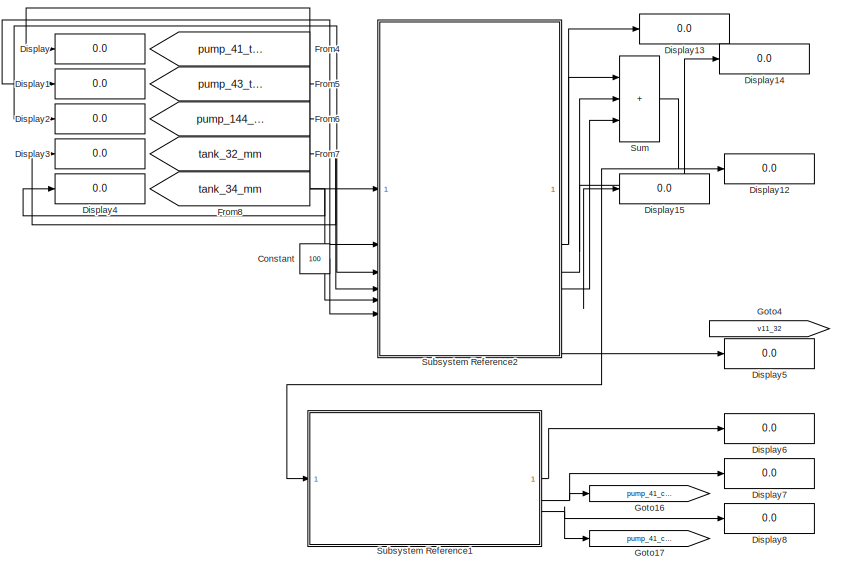
[diagram: root canvas - part 1/5, top left region]
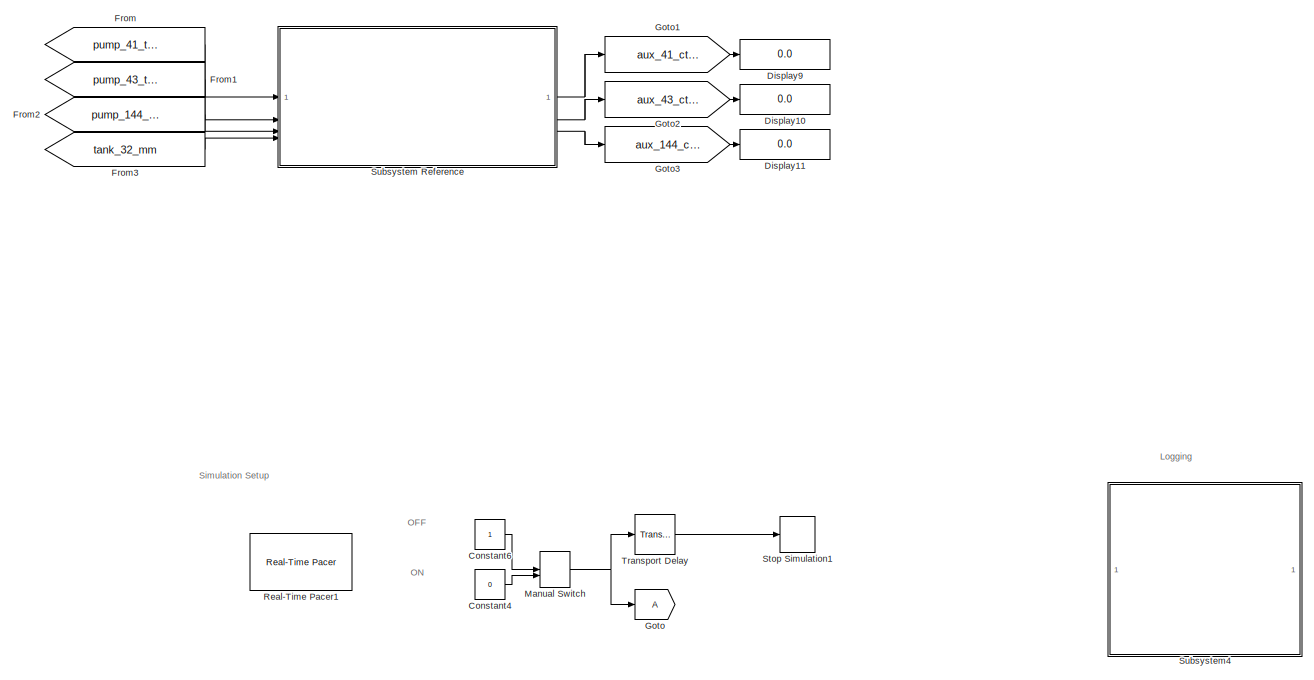
[diagram: root canvas - part 2/5, top center region]
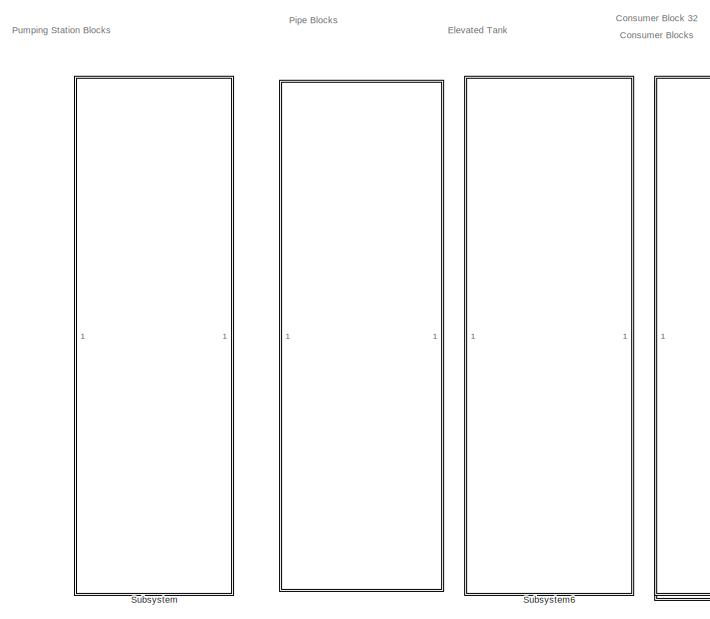
[diagram: root canvas - part 3/5, bottom center region]
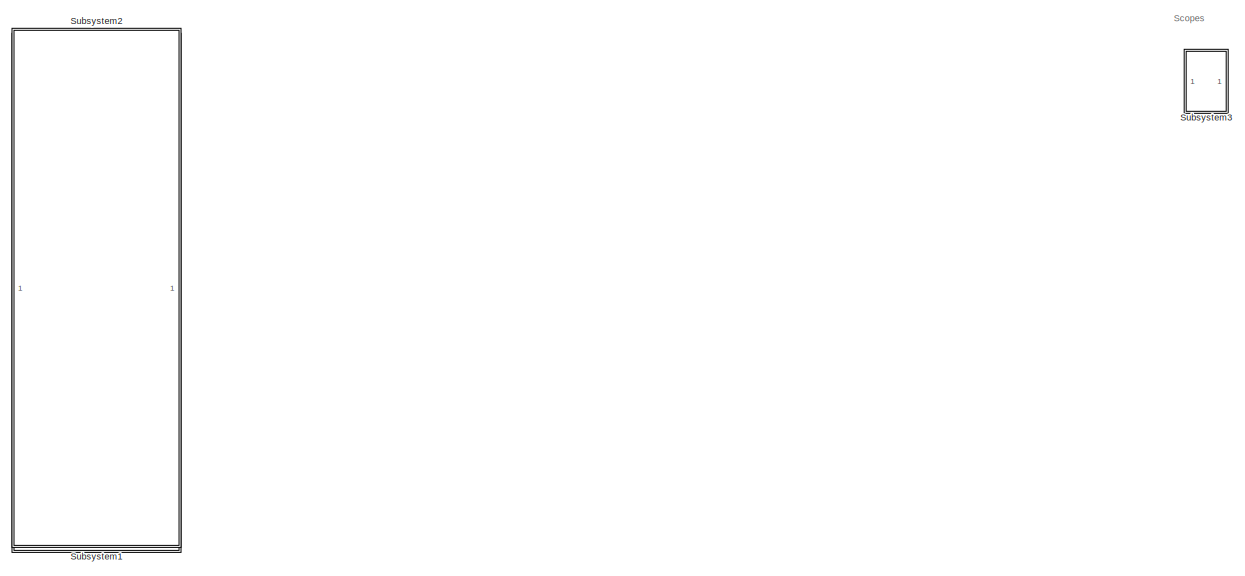
[diagram: root canvas - part 4/5, bottom right region]
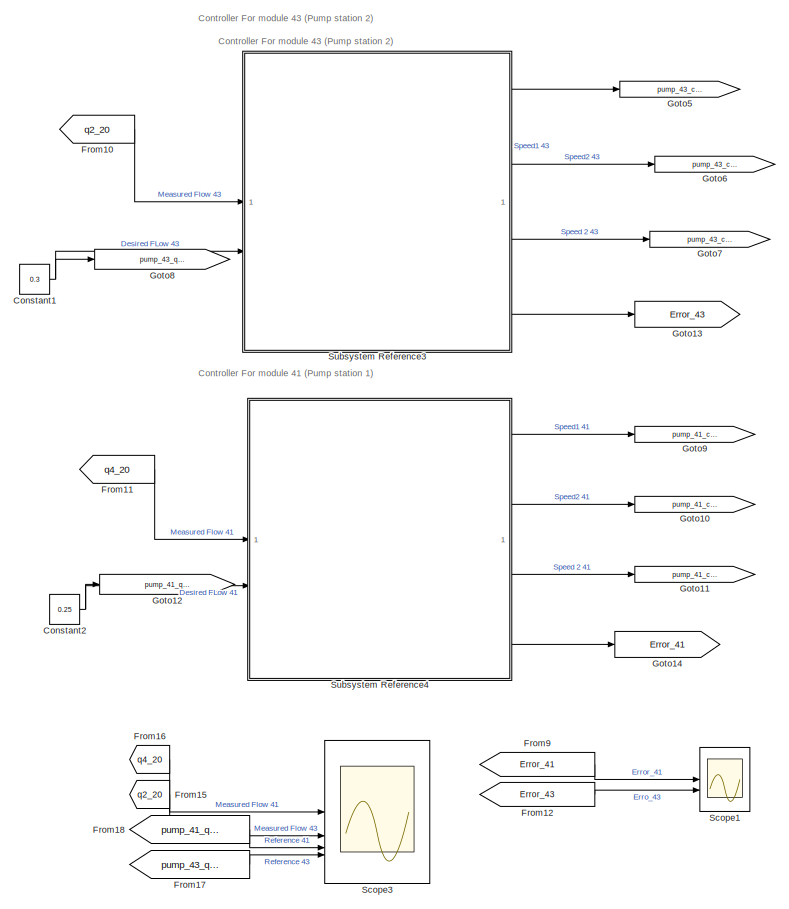
[diagram: root canvas - part 5/5, bottom left region]
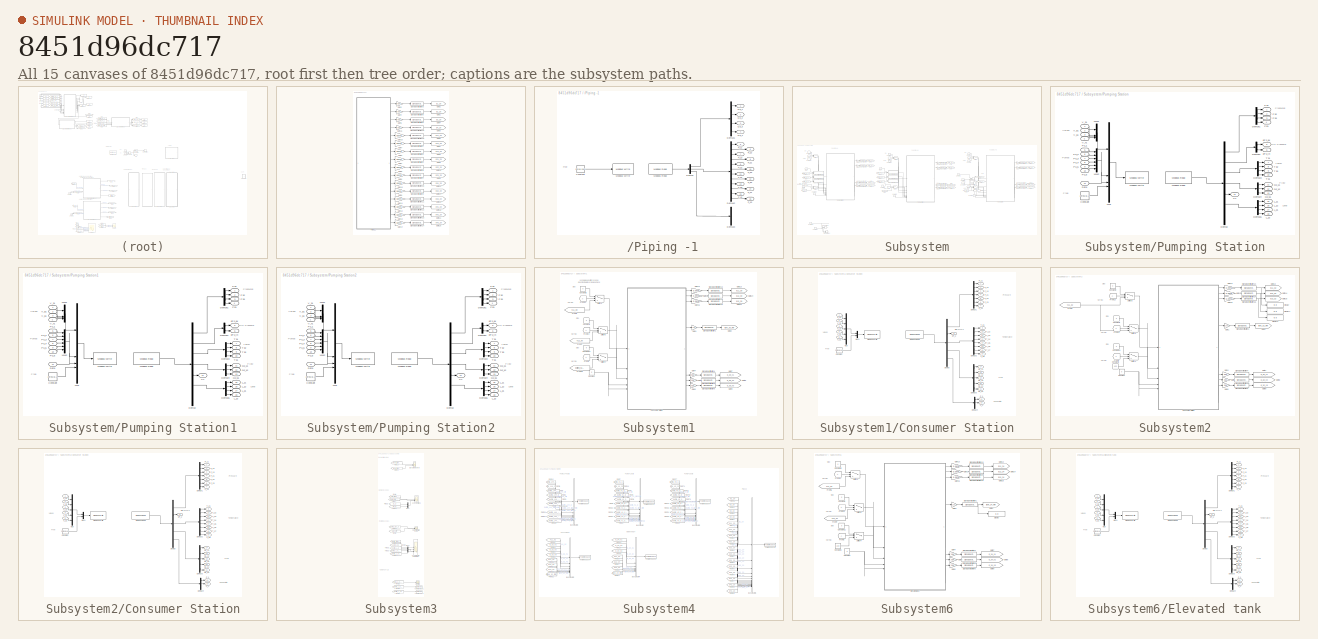
[diagram: thumbnail index - all 15 canvases of the model, root first then tree order]
MODEL slx_8451d96dc717
KIND model
CONFIG AbsTol = auto
CONFIG EnableMultiTasking = off
CONFIG FixedStep = auto
CONFIG MaxStep = auto
CONFIG MinStep = auto
CONFIG RelTol = 1e-3
CONFIG SampleTimeConstraint = Unconstrained
CONFIG SolverName = VariableStepAuto
CONFIG StartTime = 0.0
CONFIG StopTime = inf
WORKSPACE source: mxarray member
WORKSPACE Ki = 2
WORKSPACE Kp = 3
BLOCK [SubSystem]  
BLOCK [Gain]  /Gain1
  Gain = 0.0978
  NameLocation = top
BLOCK [Gain]  /Gain10
  Gain = 0.0978
  NameLocation = top
BLOCK [Gain]  /Gain11
  Gain = 0.0978
  NameLocation = top
BLOCK [Gain]  /Gain12
  Gain = 0.0978
  NameLocation = top
BLOCK [Gain]  /Gain13
  Gain = 0.0978
  NameLocation = top
BLOCK [Gain]  /Gain14
  Gain = 0.0978
  NameLocation = top
BLOCK [Gain]  /Gain15
  Gain = 0.0978
  NameLocation = top
BLOCK [Gain]  /Gain16
  Gain = 0.06
  NameLocation = top
BLOCK [Gain]  /Gain2
  Gain = 0.06
  NameLocation = top
BLOCK [Gain]  /Gain3
  Gain = 0.0978
  NameLocation = top
BLOCK [Gain]  /Gain4
  Gain = 0.06
  NameLocation = top
BLOCK [Gain]  /Gain5
  Gain = 0.06
  NameLocation = top
BLOCK [Gain]  /Gain6
  Gain = 0.0978
  NameLocation = top
BLOCK [Gain]  /Gain7
  Gain = 0.0978
  NameLocation = top
BLOCK [Gain]  /Gain8
  Gain = 0.0978
  NameLocation = top
BLOCK [Gain]  /Gain9
  Gain = 0.0978
  NameLocation = top
BLOCK [Goto]  /Goto1
  GotoTag = q2_20
  TagVisibility = global
BLOCK [Goto]  /Goto10
  GotoTag = p22_20
  TagVisibility = global
BLOCK [Goto]  /Goto11
  GotoTag = p42_20
  TagVisibility = global
BLOCK [Goto]  /Goto12
  GotoTag = p31_20
  TagVisibility = global
BLOCK [Goto]  /Goto13
  GotoTag = p33_20
  TagVisibility = global
BLOCK [Goto]  /Goto14
  GotoTag = p32_20
  TagVisibility = global
BLOCK [Goto]  /Goto15
  GotoTag = p41_20
  TagVisibility = global
BLOCK [Goto]  /Goto16
  GotoTag = p43_20
  TagVisibility = global
BLOCK [Goto]  /Goto2
  GotoTag = q1_20
  TagVisibility = global
BLOCK [Goto]  /Goto3
  GotoTag = q4_20
  TagVisibility = global
BLOCK [Goto]  /Goto4
  GotoTag = q3_20
  TagVisibility = global
BLOCK [Goto]  /Goto5
  GotoTag = p11_20
  TagVisibility = global
BLOCK [Goto]  /Goto6
  GotoTag = p13_20
  TagVisibility = global
BLOCK [Goto]  /Goto7
  GotoTag = p12_20
  TagVisibility = global
BLOCK [Goto]  /Goto8
  GotoTag = p21_20
  TagVisibility = global
BLOCK [Goto]  /Goto9
  GotoTag = p23_20
  TagVisibility = global
BLOCK [SubSystem]  /Piping -1
BLOCK [Constant]  /Piping -1/Constant
  Value = zeros(19,1)
BLOCK [Demux]  /Piping -1/Demux
  Outputs = [4 12 8]
BLOCK [Demux]  /Piping -1/Demux1
BLOCK [Demux]  /Piping -1/Demux2
  Outputs = 12
BLOCK [Demux]  /Piping -1/Demux3
BLOCK [Reference]  /Piping -1/Modbus Read  REF=modbusMatLib/Modbus Read
  SourceBlock = modbusMatLib/Modbus Read
  SourceType = Modbus Read
BLOCK [Reference]  /Piping -1/Modbus Write  REF=modbusMatLib/Modbus Write
  SourceBlock = modbusMatLib/Modbus Write
  SourceType = Modbus Write
BLOCK [Outport]  /Piping -1/P_11
  Port = 5
  VectorParamsAs1DForOutWhenUnconnected = off
BLOCK [Outport]  /Piping -1/P_12
  Port = 6
  VectorParamsAs1DForOutWhenUnconnected = off
BLOCK [Outport]  /Piping -1/P_13
  Port = 7
  VectorParamsAs1DForOutWhenUnconnected = off
BLOCK [Outport]  /Piping -1/P_21
  Port = 8
  VectorParamsAs1DForOutWhenUnconnected = off
BLOCK [Outport]  /Piping -1/P_22
  Port = 9
  VectorParamsAs1DForOutWhenUnconnected = off
BLOCK [Outport]  /Piping -1/P_23
  Port = 10
  VectorParamsAs1DForOutWhenUnconnected = off
BLOCK [Outport]  /Piping -1/P_31
  Port = 11
  VectorParamsAs1DForOutWhenUnconnected = off
BLOCK [Outport]  /Piping -1/P_32
  Port = 12
  VectorParamsAs1DForOutWhenUnconnected = off
BLOCK [Outport]  /Piping -1/P_33
  Port = 13
  VectorParamsAs1DForOutWhenUnconnected = off
BLOCK [Outport]  /Piping -1/P_41
  Port = 14
  VectorParamsAs1DForOutWhenUnconnected = off
BLOCK [Outport]  /Piping -1/P_42
  Port = 15
  VectorParamsAs1DForOutWhenUnconnected = off
BLOCK [Outport]  /Piping -1/P_43
  Port = 16
  VectorParamsAs1DForOutWhenUnconnected = off
BLOCK [Outport]  /Piping -1/Q3_1
  VectorParamsAs1DForOutWhenUnconnected = off
BLOCK [Outport]  /Piping -1/Q3_2
  Port = 2
  VectorParamsAs1DForOutWhenUnconnected = off
BLOCK [Outport]  /Piping -1/Q3_3
  Port = 3
  VectorParamsAs1DForOutWhenUnconnected = off
BLOCK [Outport]  /Piping -1/Q3_4
  Port = 4
  VectorParamsAs1DForOutWhenUnconnected = off
BLOCK [SignalSpecification]  /Signal Specification1
  Unit = bar
BLOCK [SignalSpecification]  /Signal Specification10
  Unit = bar
BLOCK [SignalSpecification]  /Signal Specification11
  Unit = bar
BLOCK [SignalSpecification]  /Signal Specification12
  Unit = bar
BLOCK [SignalSpecification]  /Signal Specification13
  Unit = bar
BLOCK [SignalSpecification]  /Signal Specification14
  Unit = bar
BLOCK [SignalSpecification]  /Signal Specification15
  Unit = bar
BLOCK [SignalSpecification]  /Signal Specification16
  Unit = m^3/hr
BLOCK [SignalSpecification]  /Signal Specification2
  Unit = bar
BLOCK [SignalSpecification]  /Signal Specification3
  Unit = m^3/hr
BLOCK [SignalSpecification]  /Signal Specification4
  Unit = bar
BLOCK [SignalSpecification]  /Signal Specification5
  Unit = m^3/hr
BLOCK [SignalSpecification]  /Signal Specification6
  Unit = m^3/hr
BLOCK [SignalSpecification]  /Signal Specification7
  Unit = bar
BLOCK [SignalSpecification]  /Signal Specification8
  Unit = bar
BLOCK [SignalSpecification]  /Signal Specification9
  Unit = bar
BLOCK [Constant] Constant
  Commented = on
  Value = 100
BLOCK [Constant] Constant1
  Value = 0.3
BLOCK [Constant] Constant2
  Value = 0.25
BLOCK [Constant] Constant4
  Value = 0
BLOCK [Constant] Constant6
BLOCK [Display] Display
  Decimation = 1
BLOCK [Display] Display1
  Decimation = 1
BLOCK [Display] Display10
  Commented = on
  Decimation = 1
BLOCK [Display] Display11
  Commented = on
  Decimation = 1
BLOCK [Display] Display12
  Commented = on
  Decimation = 1
BLOCK [Display] Display13
  Commented = on
  Decimation = 1
BLOCK [Display] Display14
  Commented = on
  Decimation = 1
BLOCK [Display] Display15
  Commented = on
  Decimation = 1
BLOCK [Display] Display2
  Decimation = 1
BLOCK [Display] Display3
  Decimation = 1
BLOCK [Display] Display4
  Decimation = 1
BLOCK [Display] Display5
  Commented = on
  Decimation = 1
BLOCK [Display] Display6
  Commented = on
  Decimation = 1
BLOCK [Display] Display7
  Commented = on
  Decimation = 1
BLOCK [Display] Display8
  Commented = on
  Decimation = 1
BLOCK [Display] Display9
  Commented = on
  Decimation = 1
BLOCK [From] From
  Commented = on
  GotoTag = pump_41_tank_mm
  TagVisibility = global
BLOCK [From] From1
  Commented = on
  GotoTag = pump_43_tank_mm
  TagVisibility = global
BLOCK [From] From10
  GotoTag = q2_20
  TagVisibility = global
BLOCK [From] From11
  GotoTag = q4_20
  TagVisibility = global
BLOCK [From] From12
  GotoTag = Error_43
BLOCK [From] From15
  GotoTag = q2_20
  TagVisibility = global
BLOCK [From] From16
  GotoTag = q4_20
  TagVisibility = global
BLOCK [From] From17
  GotoTag = pump_43_q_reference
  TagVisibility = global
BLOCK [From] From18
  GotoTag = pump_41_q_reference
  TagVisibility = global
BLOCK [From] From2
  Commented = on
  GotoTag = pump_144_tank_mm
  TagVisibility = global
BLOCK [From] From3
  Commented = on
  GotoTag = tank_32_mm
  TagVisibility = global
BLOCK [From] From4
  Commented = on
  GotoTag = pump_41_tank_mm
  TagVisibility = global
BLOCK [From] From5
  Commented = on
  GotoTag = pump_43_tank_mm
  TagVisibility = global
BLOCK [From] From6
  Commented = on
  GotoTag = pump_144_tank_mm
  TagVisibility = global
BLOCK [From] From7
  Commented = on
  GotoTag = tank_32_mm
  TagVisibility = global
BLOCK [From] From8
  Commented = on
  GotoTag = tank_34_mm
  TagVisibility = global
BLOCK [From] From9
  GotoTag = Error_41
BLOCK [Goto] Goto
  TagVisibility = global
BLOCK [Goto] Goto1
  Commented = on
  GotoTag = aux_41_ctrl
  TagVisibility = global
BLOCK [Goto] Goto10
  GotoTag = pump_41_ctrl_2
  TagVisibility = global
BLOCK [Goto] Goto11
  GotoTag = pump_41_ctrl_3
  TagVisibility = global
BLOCK [Goto] Goto12
  GotoTag = pump_41_q_reference
  TagVisibility = global
BLOCK [Goto] Goto13
  GotoTag = Error_43
BLOCK [Goto] Goto14
  GotoTag = Error_41
BLOCK [Goto] Goto16
  Commented = on
  GotoTag = pump_41_ctrl_2
  TagVisibility = global
BLOCK [Goto] Goto17
  Commented = on
  GotoTag = pump_41_ctrl_3
  TagVisibility = global
BLOCK [Goto] Goto2
  Commented = on
  GotoTag = aux_43_ctrl
  TagVisibility = global
BLOCK [Goto] Goto3
  Commented = on
  GotoTag = aux_144_ctrl
  TagVisibility = global
BLOCK [Goto] Goto4
  Commented = on
  GotoTag = v11_32
  TagVisibility = global
BLOCK [Goto] Goto5
  GotoTag = pump_43_ctrl_1
  TagVisibility = global
BLOCK [Goto] Goto6
  GotoTag = pump_43_ctrl_2
  TagVisibility = global
BLOCK [Goto] Goto7
  GotoTag = pump_43_ctrl_3
  TagVisibility = global
BLOCK [Goto] Goto8
  GotoTag = pump_43_q_reference
  TagVisibility = global
BLOCK [Goto] Goto9
  GotoTag = pump_41_ctrl_1
  TagVisibility = global
BLOCK [ManualSwitch] Manual Switch
BLOCK [Reference] Real-Time Pacer1  REF=realtime_pacer_lib/Real-Time Pacer
  SourceBlock = realtime_pacer_lib/Real-Time Pacer
  SourceType = RealTime_Pacer
BLOCK [Scope] Scope1
  Floating = off
  NumInputPorts = 2
  ScopeSpecificationString = Simulink.scopes.TimeScopeBlockCfg('CurrentConfiguration', extmgr.ConfigurationSet(extmgr.Configuration('Core','General UI',true),extmgr.Configuration('Core','Source UI',true),extmgr.Configuration('Sources','WiredSimulink',true,'DataLoggingVariableName','ScopeData3'),extmgr.Configuration('Visuals','Time Domain',true,'SerializedDisplays',{struct('MinYLimReal','-0.0018','MaxYLimReal','0.0282','YLabel...<+1424ch>
BLOCK [Scope] Scope3
  Floating = off
  NumInputPorts = 4
  ScopeSpecificationString = Simulink.scopes.TimeScopeBlockCfg('CurrentConfiguration', extmgr.ConfigurationSet(extmgr.Configuration('Core','General UI',true),extmgr.Configuration('Core','Source UI',true),extmgr.Configuration('Sources','WiredSimulink',true,'DataLoggingVariableName','ScopeData2'),extmgr.Configuration('Visuals','Time Domain',true,'SerializedDisplays',{struct('MinYLimReal','0.21968','MaxYLimReal','0.30892','YLabe...<+1476ch>
BLOCK [Stop] Stop Simulation1
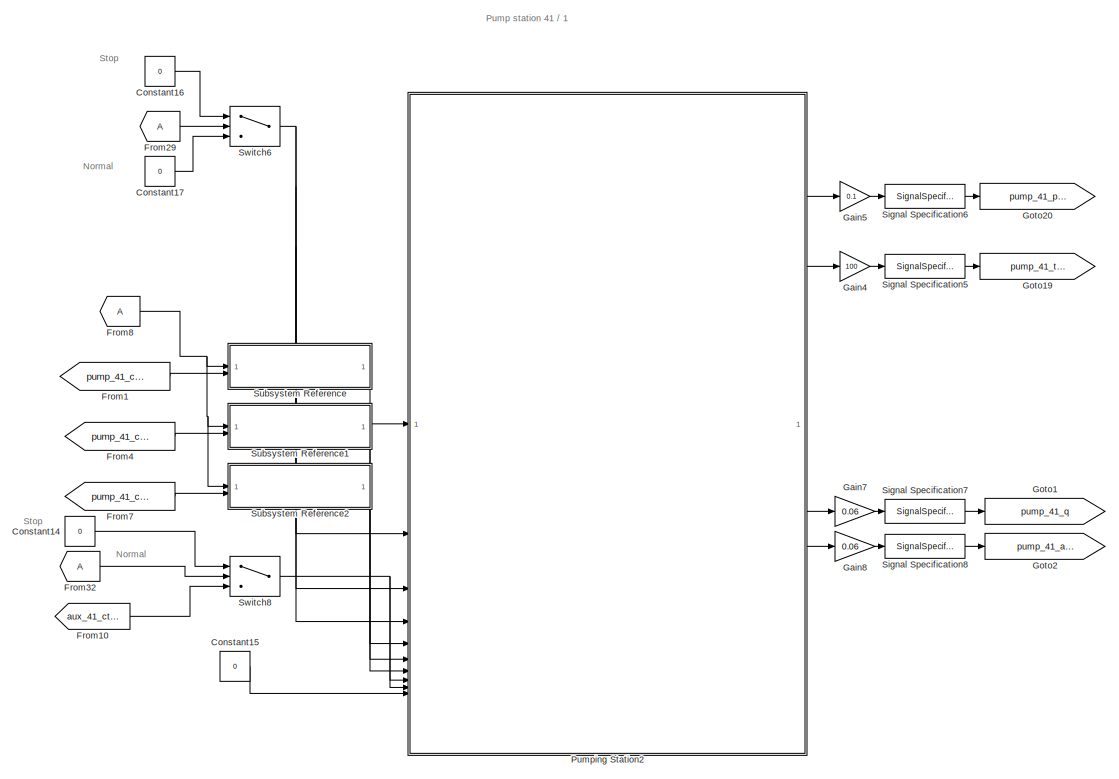
[diagram: Subsystem - part 1/4, top left region]
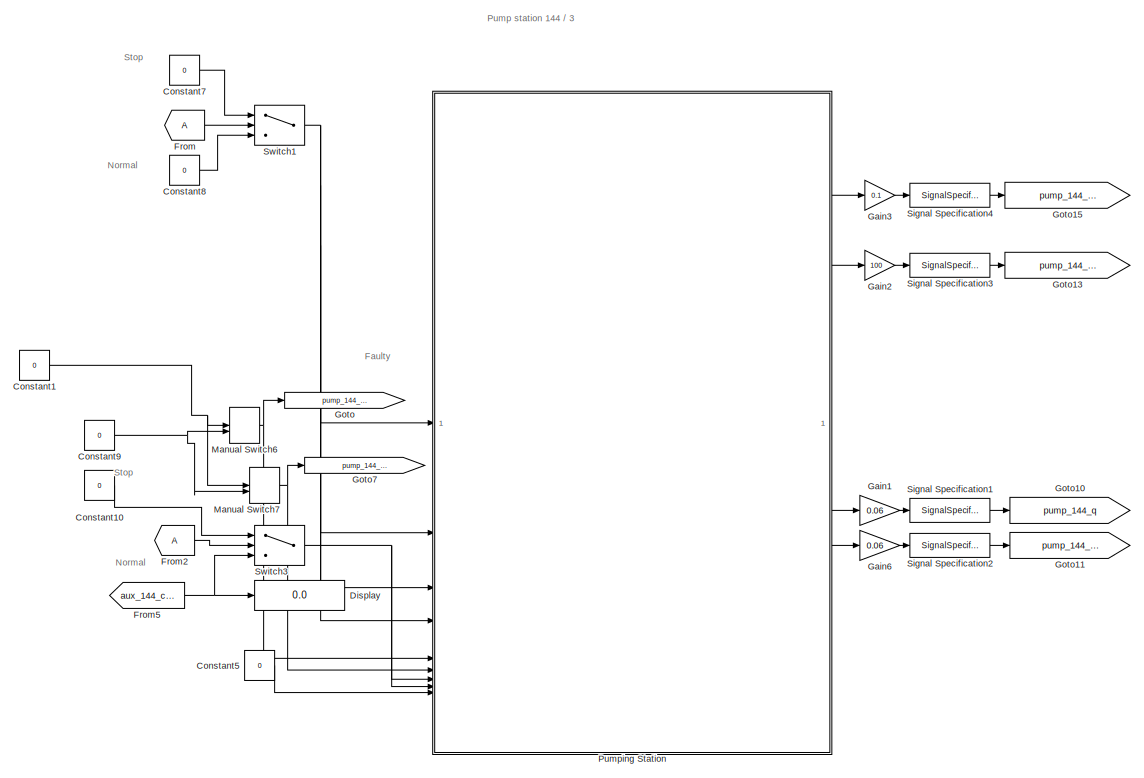
[diagram: Subsystem - part 2/4, middle right region]
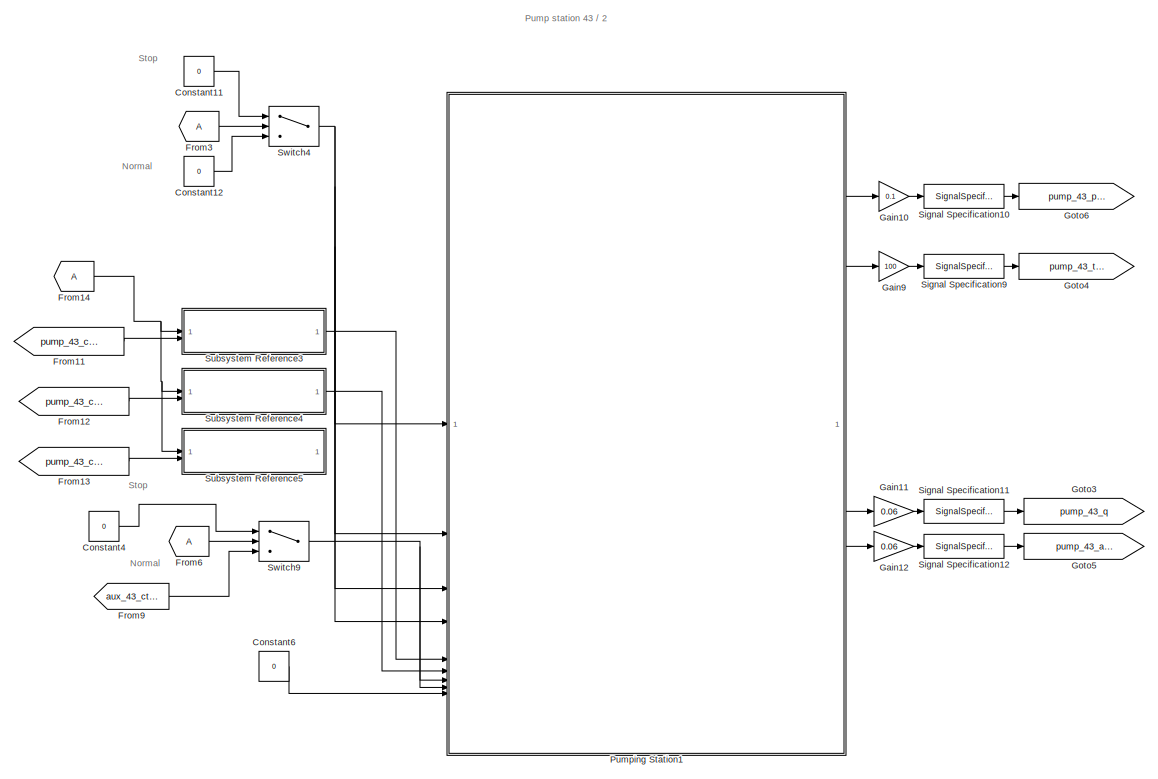
[diagram: Subsystem - part 3/4, central region]
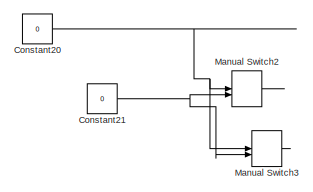
[diagram: Subsystem - part 4/4, bottom left region]
BLOCK [SubSystem] Subsystem
BLOCK [SubSystem] Subsystem Reference
  Commented = on
  ReferencedSubsystem = reutrn_water_controller
  consumer_max = 500
  consumer_min = 150
  switch_time = 63
  tank_pump_max = 530
  tank_pump_ref = 300
BLOCK [SubSystem] Subsystem Reference1
  Commented = on
  ReferencedSubsystem = Pump_step_algortihm
  start_frequncy = 50
BLOCK [SubSystem] Subsystem Reference2
  Commented = on
  ReferencedSubsystem = WDN_safety_controller
  consumer_tank_max = 550
  consumer_tank_min = 80
  pump_tank_min = 130
BLOCK [SubSystem] Subsystem Reference3
  Ki = 2
  Kp = 3
  ReferencedSubsystem = Pumpstation_Controller
  Speedlimit_Lower = 65
  Speedlimit_Upper = 95
  TotalPumps = 3
BLOCK [SubSystem] Subsystem Reference4
  Ki = 2.5
  Kp = 5
  ReferencedSubsystem = Pumpstation_Controller
  Speedlimit_Lower = 65
  Speedlimit_Upper = 95
  TotalPumps = 3
BLOCK [Constant] Subsystem/Constant1
  Value = 0
BLOCK [Constant] Subsystem/Constant10
  Value = 0
BLOCK [Constant] Subsystem/Constant11
  Value = 0
BLOCK [Constant] Subsystem/Constant12
  Value = 0
BLOCK [Constant] Subsystem/Constant14
  Value = 0
BLOCK [Constant] Subsystem/Constant15
  Value = 0
BLOCK [Constant] Subsystem/Constant16
  Value = 0
BLOCK [Constant] Subsystem/Constant17
  Value = 0
BLOCK [Constant] Subsystem/Constant20
  Value = 0
BLOCK [Constant] Subsystem/Constant21
  Value = 0
BLOCK [Constant] Subsystem/Constant4
  Value = 0
BLOCK [Constant] Subsystem/Constant5
  Value = 0
BLOCK [Constant] Subsystem/Constant6
  Value = 0
BLOCK [Constant] Subsystem/Constant7
  Value = 0
BLOCK [Constant] Subsystem/Constant8
  Value = 0
BLOCK [Constant] Subsystem/Constant9
  Value = 0
BLOCK [Display] Subsystem/Display
  Decimation = 1
BLOCK [From] Subsystem/From
  TagVisibility = global
BLOCK [From] Subsystem/From1
  GotoTag = pump_41_ctrl_1
  TagVisibility = global
BLOCK [From] Subsystem/From10
  GotoTag = aux_41_ctrl
  NameLocation = top
BLOCK [From] Subsystem/From11
  GotoTag = pump_43_ctrl_1
  TagVisibility = global
BLOCK [From] Subsystem/From12
  GotoTag = pump_43_ctrl_2
  TagVisibility = global
BLOCK [From] Subsystem/From13
  GotoTag = pump_43_ctrl_3
  TagVisibility = global
BLOCK [From] Subsystem/From14
  TagVisibility = global
BLOCK [From] Subsystem/From2
  TagVisibility = global
BLOCK [From] Subsystem/From29
  TagVisibility = global
BLOCK [From] Subsystem/From3
  TagVisibility = global
BLOCK [From] Subsystem/From32
  TagVisibility = global
BLOCK [From] Subsystem/From4
  GotoTag = pump_41_ctrl_2
  TagVisibility = global
BLOCK [From] Subsystem/From5
  GotoTag = aux_144_ctrl
  NameLocation = top
BLOCK [From] Subsystem/From6
  TagVisibility = global
BLOCK [From] Subsystem/From7
  GotoTag = pump_41_ctrl_3
  TagVisibility = global
BLOCK [From] Subsystem/From8
  TagVisibility = global
BLOCK [From] Subsystem/From9
  GotoTag = aux_43_ctrl
  NameLocation = top
BLOCK [Gain] Subsystem/Gain1
  Gain = 0.06
  NameLocation = top
BLOCK [Gain] Subsystem/Gain10
  Gain = 0.1
  NameLocation = top
BLOCK [Gain] Subsystem/Gain11
  Gain = 0.06
  NameLocation = top
BLOCK [Gain] Subsystem/Gain12
  Gain = 0.06
  NameLocation = top
BLOCK [Gain] Subsystem/Gain2
  Gain = 100
  NameLocation = top
BLOCK [Gain] Subsystem/Gain3
  Gain = 0.1
  NameLocation = top
BLOCK [Gain] Subsystem/Gain4
  Gain = 100
  NameLocation = top
BLOCK [Gain] Subsystem/Gain5
  Gain = 0.1
  NameLocation = top
BLOCK [Gain] Subsystem/Gain6
  Gain = 0.06
  NameLocation = top
BLOCK [Gain] Subsystem/Gain7
  Gain = 0.06
  NameLocation = top
BLOCK [Gain] Subsystem/Gain8
  Gain = 0.06
  NameLocation = top
BLOCK [Gain] Subsystem/Gain9
  Gain = 100
  NameLocation = top
BLOCK [Goto] Subsystem/Goto
  GotoTag = pump_144_ctrl_2
  TagVisibility = global
BLOCK [Goto] Subsystem/Goto1
  GotoTag = pump_41_q
  TagVisibility = global
BLOCK [Goto] Subsystem/Goto10
  GotoTag = pump_144_q
  TagVisibility = global
BLOCK [Goto] Subsystem/Goto11
  GotoTag = pump_144_aux_q
  TagVisibility = global
BLOCK [Goto] Subsystem/Goto13
  GotoTag = pump_144_tank_mm
  TagVisibility = global
BLOCK [Goto] Subsystem/Goto15
  GotoTag = pump_144_pressure
  TagVisibility = global
BLOCK [Goto] Subsystem/Goto19
  GotoTag = pump_41_tank_mm
  TagVisibility = global
BLOCK [Goto] Subsystem/Goto2
  GotoTag = pump_41_aux_q
  TagVisibility = global
BLOCK [Goto] Subsystem/Goto20
  GotoTag = pump_41_pressure
  TagVisibility = global
BLOCK [Goto] Subsystem/Goto3
  GotoTag = pump_43_q
  TagVisibility = global
BLOCK [Goto] Subsystem/Goto4
  GotoTag = pump_43_tank_mm
  TagVisibility = global
BLOCK [Goto] Subsystem/Goto5
  GotoTag = pump_43_aux_q
  TagVisibility = global
BLOCK [Goto] Subsystem/Goto6
  GotoTag = pump_43_pressure
  TagVisibility = global
BLOCK [Goto] Subsystem/Goto7
  GotoTag = pump_144_ctrl_3
  TagVisibility = global
BLOCK [ManualSwitch] Subsystem/Manual Switch2
BLOCK [ManualSwitch] Subsystem/Manual Switch3
BLOCK [ManualSwitch] Subsystem/Manual Switch6
BLOCK [ManualSwitch] Subsystem/Manual Switch7
  CurrentSetting = 0
BLOCK [SubSystem] Subsystem/Pumping Station
BLOCK [Outport] Subsystem/Pumping Station/C1
  Port = 14
  VectorParamsAs1DForOutWhenUnconnected = off
BLOCK [Constant] Subsystem/Pumping Station/Constant
  Value = zeros(8,1)
BLOCK [Inport] Subsystem/Pumping Station/Data
  Port = 11
BLOCK [Demux] Subsystem/Pumping Station/Demux
  Outputs = [4 2 4 3 1 4 6]
BLOCK [Demux] Subsystem/Pumping Station/Demux1
BLOCK [Demux] Subsystem/Pumping Station/Demux2
  Outputs = 2
BLOCK [Demux] Subsystem/Pumping Station/Demux3
BLOCK [Demux] Subsystem/Pumping Station/Demux4
  Outputs = 3
BLOCK [Demux] Subsystem/Pumping Station/Demux6
BLOCK [Outport] Subsystem/Pumping Station/L_11
  Port = 15
  VectorParamsAs1DForOutWhenUnconnected = off
BLOCK [Outport] Subsystem/Pumping Station/L_12
  Port = 16
  VectorParamsAs1DForOutWhenUnconnected = off
BLOCK [Outport] Subsystem/Pumping Station/L_21
  Port = 17
  VectorParamsAs1DForOutWhenUnconnected = off
BLOCK [Outport] Subsystem/Pumping Station/L_22
  Port = 18
  VectorParamsAs1DForOutWhenUnconnected = off
BLOCK [Reference] Subsystem/Pumping Station/Modbus Read  REF=modbusMatLib/Modbus Read
  SourceBlock = modbusMatLib/Modbus Read
  SourceType = Modbus Read
BLOCK [Reference] Subsystem/Pumping Station/Modbus Write  REF=modbusMatLib/Modbus Write
  SourceBlock = modbusMatLib/Modbus Write
  SourceType = Modbus Write
BLOCK [Mux] Subsystem/Pumping Station/Mux
  DisplayOption = bar
BLOCK [Mux] Subsystem/Pumping Station/Mux1
  DisplayOption = bar
BLOCK [Mux] Subsystem/Pumping Station/Mux2
  DisplayOption = bar
  Inputs = 6
BLOCK [Outport] Subsystem/Pumping Station/P31
  VectorParamsAs1DForOutWhenUnconnected = off
BLOCK [Outport] Subsystem/Pumping Station/P32
  Port = 2
  VectorParamsAs1DForOutWhenUnconnected = off
BLOCK [Outport] Subsystem/Pumping Station/P33
  Port = 3
  VectorParamsAs1DForOutWhenUnconnected = off
BLOCK [Outport] Subsystem/Pumping Station/P51
  Port = 4
  VectorParamsAs1DForOutWhenUnconnected = off
BLOCK [Inport] Subsystem/Pumping Station/Pu_1
  Port = 5
BLOCK [Inport] Subsystem/Pumping Station/Pu_2
  Port = 6
BLOCK [Inport] Subsystem/Pumping Station/Pu_3
  Port = 7
BLOCK [Inport] Subsystem/Pumping Station/Pu_4
  Port = 8
BLOCK [Inport] Subsystem/Pumping Station/Pu_5
  Port = 9
BLOCK [Inport] Subsystem/Pumping Station/Pu_6
  Port = 10
BLOCK [Outport] Subsystem/Pumping Station/Q2_11
  Port = 11
  VectorParamsAs1DForOutWhenUnconnected = off
BLOCK [Outport] Subsystem/Pumping Station/Q2_12
  Port = 12
  VectorParamsAs1DForOutWhenUnconnected = off
BLOCK [Outport] Subsystem/Pumping Station/Q2_51
  Port = 13
  VectorParamsAs1DForOutWhenUnconnected = off
BLOCK [Outport] Subsystem/Pumping Station/T31
  Port = 7
  VectorParamsAs1DForOutWhenUnconnected = off
BLOCK [Outport] Subsystem/Pumping Station/T32
  Port = 8
  VectorParamsAs1DForOutWhenUnconnected = off
BLOCK [Outport] Subsystem/Pumping Station/T33
  Port = 9
  VectorParamsAs1DForOutWhenUnconnected = off
BLOCK [Outport] Subsystem/Pumping Station/T51
  Port = 10
  VectorParamsAs1DForOutWhenUnconnected = off
BLOCK [Inport] Subsystem/Pumping Station/V_31
BLOCK [Inport] Subsystem/Pumping Station/V_51
  Port = 2
BLOCK [Inport] Subsystem/Pumping Station/V_61
  Port = 3
BLOCK [Inport] Subsystem/Pumping Station/V_71
  Port = 4
BLOCK [Outport] Subsystem/Pumping Station/dP2_ex
  Port = 5
  VectorParamsAs1DForOutWhenUnconnected = off
BLOCK [Outport] Subsystem/Pumping Station/dP2_in
  Port = 6
  VectorParamsAs1DForOutWhenUnconnected = off
BLOCK [SubSystem] Subsystem/Pumping Station1
BLOCK [Outport] Subsystem/Pumping Station1/C1
  Port = 14
  VectorParamsAs1DForOutWhenUnconnected = off
BLOCK [Constant] Subsystem/Pumping Station1/Constant
  Value = zeros(8,1)
BLOCK [Inport] Subsystem/Pumping Station1/Data
  Port = 11
BLOCK [Demux] Subsystem/Pumping Station1/Demux
  Outputs = [4 2 4 3 1 4 6]
BLOCK [Demux] Subsystem/Pumping Station1/Demux1
BLOCK [Demux] Subsystem/Pumping Station1/Demux2
  Outputs = 2
BLOCK [Demux] Subsystem/Pumping Station1/Demux3
BLOCK [Demux] Subsystem/Pumping Station1/Demux4
  Outputs = 3
BLOCK [Demux] Subsystem/Pumping Station1/Demux6
BLOCK [Outport] Subsystem/Pumping Station1/L_11
  Port = 15
  VectorParamsAs1DForOutWhenUnconnected = off
BLOCK [Outport] Subsystem/Pumping Station1/L_12
  Port = 16
  VectorParamsAs1DForOutWhenUnconnected = off
BLOCK [Outport] Subsystem/Pumping Station1/L_21
  Port = 17
  VectorParamsAs1DForOutWhenUnconnected = off
BLOCK [Outport] Subsystem/Pumping Station1/L_22
  Port = 18
  VectorParamsAs1DForOutWhenUnconnected = off
BLOCK [Reference] Subsystem/Pumping Station1/Modbus Read  REF=modbusMatLib/Modbus Read
  SourceBlock = modbusMatLib/Modbus Read
  SourceType = Modbus Read
BLOCK [Reference] Subsystem/Pumping Station1/Modbus Write  REF=modbusMatLib/Modbus Write
  SourceBlock = modbusMatLib/Modbus Write
  SourceType = Modbus Write
BLOCK [Mux] Subsystem/Pumping Station1/Mux
  DisplayOption = bar
BLOCK [Mux] Subsystem/Pumping Station1/Mux1
  DisplayOption = bar
BLOCK [Mux] Subsystem/Pumping Station1/Mux2
  DisplayOption = bar
  Inputs = 6
BLOCK [Outport] Subsystem/Pumping Station1/P31
  VectorParamsAs1DForOutWhenUnconnected = off
BLOCK [Outport] Subsystem/Pumping Station1/P32
  Port = 2
  VectorParamsAs1DForOutWhenUnconnected = off
BLOCK [Outport] Subsystem/Pumping Station1/P33
  Port = 3
  VectorParamsAs1DForOutWhenUnconnected = off
BLOCK [Outport] Subsystem/Pumping Station1/P51
  Port = 4
  VectorParamsAs1DForOutWhenUnconnected = off
BLOCK [Inport] Subsystem/Pumping Station1/Pu_1
  Port = 5
BLOCK [Inport] Subsystem/Pumping Station1/Pu_2
  Port = 6
BLOCK [Inport] Subsystem/Pumping Station1/Pu_3
  Port = 7
BLOCK [Inport] Subsystem/Pumping Station1/Pu_4
  Port = 8
BLOCK [Inport] Subsystem/Pumping Station1/Pu_5
  Port = 9
BLOCK [Inport] Subsystem/Pumping Station1/Pu_6
  Port = 10
BLOCK [Outport] Subsystem/Pumping Station1/Q2_11
  Port = 11
  VectorParamsAs1DForOutWhenUnconnected = off
BLOCK [Outport] Subsystem/Pumping Station1/Q2_12
  Port = 12
  VectorParamsAs1DForOutWhenUnconnected = off
BLOCK [Outport] Subsystem/Pumping Station1/Q2_51
  Port = 13
  VectorParamsAs1DForOutWhenUnconnected = off
BLOCK [Outport] Subsystem/Pumping Station1/T31
  Port = 7
  VectorParamsAs1DForOutWhenUnconnected = off
BLOCK [Outport] Subsystem/Pumping Station1/T32
  Port = 8
  VectorParamsAs1DForOutWhenUnconnected = off
BLOCK [Outport] Subsystem/Pumping Station1/T33
  Port = 9
  VectorParamsAs1DForOutWhenUnconnected = off
BLOCK [Outport] Subsystem/Pumping Station1/T51
  Port = 10
  VectorParamsAs1DForOutWhenUnconnected = off
BLOCK [Inport] Subsystem/Pumping Station1/V_31
BLOCK [Inport] Subsystem/Pumping Station1/V_51
  Port = 2
BLOCK [Inport] Subsystem/Pumping Station1/V_61
  Port = 3
BLOCK [Inport] Subsystem/Pumping Station1/V_71
  Port = 4
BLOCK [Outport] Subsystem/Pumping Station1/dP2_ex
  Port = 5
  VectorParamsAs1DForOutWhenUnconnected = off
BLOCK [Outport] Subsystem/Pumping Station1/dP2_in
  Port = 6
  VectorParamsAs1DForOutWhenUnconnected = off
BLOCK [SubSystem] Subsystem/Pumping Station2
BLOCK [Outport] Subsystem/Pumping Station2/C1
  Port = 14
  VectorParamsAs1DForOutWhenUnconnected = off
BLOCK [Constant] Subsystem/Pumping Station2/Constant
  Value = zeros(8,1)
BLOCK [Inport] Subsystem/Pumping Station2/Data
  Port = 11
BLOCK [Demux] Subsystem/Pumping Station2/Demux
  Outputs = [4 2 4 3 1 4 6]
BLOCK [Demux] Subsystem/Pumping Station2/Demux1
BLOCK [Demux] Subsystem/Pumping Station2/Demux2
  Outputs = 2
BLOCK [Demux] Subsystem/Pumping Station2/Demux3
BLOCK [Demux] Subsystem/Pumping Station2/Demux4
  Outputs = 3
BLOCK [Demux] Subsystem/Pumping Station2/Demux6
BLOCK [Outport] Subsystem/Pumping Station2/L_11
  Port = 15
  VectorParamsAs1DForOutWhenUnconnected = off
BLOCK [Outport] Subsystem/Pumping Station2/L_12
  Port = 16
  VectorParamsAs1DForOutWhenUnconnected = off
BLOCK [Outport] Subsystem/Pumping Station2/L_21
  Port = 17
  VectorParamsAs1DForOutWhenUnconnected = off
BLOCK [Outport] Subsystem/Pumping Station2/L_22
  Port = 18
  VectorParamsAs1DForOutWhenUnconnected = off
BLOCK [Reference] Subsystem/Pumping Station2/Modbus Read  REF=modbusMatLib/Modbus Read
  SourceBlock = modbusMatLib/Modbus Read
  SourceType = Modbus Read
BLOCK [Reference] Subsystem/Pumping Station2/Modbus Write  REF=modbusMatLib/Modbus Write
  SourceBlock = modbusMatLib/Modbus Write
  SourceType = Modbus Write
BLOCK [Mux] Subsystem/Pumping Station2/Mux
  DisplayOption = bar
BLOCK [Mux] Subsystem/Pumping Station2/Mux1
  DisplayOption = bar
BLOCK [Mux] Subsystem/Pumping Station2/Mux2
  DisplayOption = bar
  Inputs = 6
BLOCK [Outport] Subsystem/Pumping Station2/P31
  VectorParamsAs1DForOutWhenUnconnected = off
BLOCK [Outport] Subsystem/Pumping Station2/P32
  Port = 2
  VectorParamsAs1DForOutWhenUnconnected = off
BLOCK [Outport] Subsystem/Pumping Station2/P33
  Port = 3
  VectorParamsAs1DForOutWhenUnconnected = off
BLOCK [Outport] Subsystem/Pumping Station2/P51
  Port = 4
  VectorParamsAs1DForOutWhenUnconnected = off
BLOCK [Inport] Subsystem/Pumping Station2/Pu_1
  Port = 5
BLOCK [Inport] Subsystem/Pumping Station2/Pu_2
  Port = 6
BLOCK [Inport] Subsystem/Pumping Station2/Pu_3
  Port = 7
BLOCK [Inport] Subsystem/Pumping Station2/Pu_4
  Port = 8
BLOCK [Inport] Subsystem/Pumping Station2/Pu_5
  Port = 9
BLOCK [Inport] Subsystem/Pumping Station2/Pu_6
  Port = 10
BLOCK [Outport] Subsystem/Pumping Station2/Q2_11
  Port = 11
  VectorParamsAs1DForOutWhenUnconnected = off
BLOCK [Outport] Subsystem/Pumping Station2/Q2_12
  Port = 12
  VectorParamsAs1DForOutWhenUnconnected = off
BLOCK [Outport] Subsystem/Pumping Station2/Q2_51
  Port = 13
  VectorParamsAs1DForOutWhenUnconnected = off
BLOCK [Outport] Subsystem/Pumping Station2/T31
  Port = 7
  VectorParamsAs1DForOutWhenUnconnected = off
BLOCK [Outport] Subsystem/Pumping Station2/T32
  Port = 8
  VectorParamsAs1DForOutWhenUnconnected = off
BLOCK [Outport] Subsystem/Pumping Station2/T33
  Port = 9
  VectorParamsAs1DForOutWhenUnconnected = off
BLOCK [Outport] Subsystem/Pumping Station2/T51
  Port = 10
  VectorParamsAs1DForOutWhenUnconnected = off
BLOCK [Inport] Subsystem/Pumping Station2/V_31
BLOCK [Inport] Subsystem/Pumping Station2/V_51
  Port = 2
BLOCK [Inport] Subsystem/Pumping Station2/V_61
  Port = 3
BLOCK [Inport] Subsystem/Pumping Station2/V_71
  Port = 4
BLOCK [Outport] Subsystem/Pumping Station2/dP2_ex
  Port = 5
  VectorParamsAs1DForOutWhenUnconnected = off
BLOCK [Outport] Subsystem/Pumping Station2/dP2_in
  Port = 6
  VectorParamsAs1DForOutWhenUnconnected = off
BLOCK [SignalSpecification] Subsystem/Signal Specification1
  Unit = m^3/hr
BLOCK [SignalSpecification] Subsystem/Signal Specification10
  Unit = bar
BLOCK [SignalSpecification] Subsystem/Signal Specification11
  Unit = m^3/hr
BLOCK [SignalSpecification] Subsystem/Signal Specification12
  Unit = m^3/hr
BLOCK [SignalSpecification] Subsystem/Signal Specification2
  Unit = m^3/hr
BLOCK [SignalSpecification] Subsystem/Signal Specification3
  Unit = mm
BLOCK [SignalSpecification] Subsystem/Signal Specification4
  Unit = bar
BLOCK [SignalSpecification] Subsystem/Signal Specification5
  Unit = mm
BLOCK [SignalSpecification] Subsystem/Signal Specification6
  Unit = bar
BLOCK [SignalSpecification] Subsystem/Signal Specification7
  Unit = m^3/hr
BLOCK [SignalSpecification] Subsystem/Signal Specification8
  Unit = m^3/hr
BLOCK [SignalSpecification] Subsystem/Signal Specification9
  Unit = mm
BLOCK [SubSystem] Subsystem/Subsystem Reference
  ReferencedSubsystem = turn_off_system
BLOCK [SubSystem] Subsystem/Subsystem Reference1
  ReferencedSubsystem = turn_off_system
BLOCK [SubSystem] Subsystem/Subsystem Reference2
  ReferencedSubsystem = turn_off_system
BLOCK [SubSystem] Subsystem/Subsystem Reference3
  ReferencedSubsystem = turn_off_system
BLOCK [SubSystem] Subsystem/Subsystem Reference4
  ReferencedSubsystem = turn_off_system
BLOCK [SubSystem] Subsystem/Subsystem Reference5
  ReferencedSubsystem = turn_off_system
BLOCK [Switch] Subsystem/Switch1
  Criteria = u2 ~= 0
  InputSameDT = off
  SaturateOnIntegerOverflow = off
BLOCK [Switch] Subsystem/Switch3
  Criteria = u2 ~= 0
  InputSameDT = off
  SaturateOnIntegerOverflow = off
BLOCK [Switch] Subsystem/Switch4
  Criteria = u2 ~= 0
  InputSameDT = off
  SaturateOnIntegerOverflow = off
BLOCK [Switch] Subsystem/Switch6
  Criteria = u2 ~= 0
  InputSameDT = off
  SaturateOnIntegerOverflow = off
BLOCK [Switch] Subsystem/Switch8
  Criteria = u2 ~= 0
  InputSameDT = off
  SaturateOnIntegerOverflow = off
BLOCK [Switch] Subsystem/Switch9
  Criteria = u2 ~= 0
  InputSameDT = off
  SaturateOnIntegerOverflow = off
BLOCK [SubSystem] Subsystem1
  Commented = on
BLOCK [Constant] Subsystem1/Constant
  Value = 0
BLOCK [Constant] Subsystem1/Constant11
  Value = 0
BLOCK [Constant] Subsystem1/Constant2
  Value = 0
BLOCK [Constant] Subsystem1/Constant4
  Value = 0
BLOCK [SubSystem] Subsystem1/Consumer Station
BLOCK [Outport] Subsystem1/Consumer Station/C_1
  Port = 22
  VectorParamsAs1DForOutWhenUnconnected = off
BLOCK [Outport] Subsystem1/Consumer Station/C_2
  Port = 23
  VectorParamsAs1DForOutWhenUnconnected = off
BLOCK [Constant] Subsystem1/Consumer Station/Constant
  Value = zeros(14,1)
BLOCK [Demux] Subsystem1/Consumer Station/Demux
  Outputs = [7 1 8 5 3]
BLOCK [Demux] Subsystem1/Consumer Station/Demux1
  Outputs = 7
BLOCK [Demux] Subsystem1/Consumer Station/Demux2
  Outputs = 8
BLOCK [Demux] Subsystem1/Consumer Station/Demux3
  Outputs = 5
BLOCK [Demux] Subsystem1/Consumer Station/Demux4
  Outputs = 3
BLOCK [Reference] Subsystem1/Consumer Station/Modbus Read  REF=modbusMatLib/Modbus Read
  SourceBlock = modbusMatLib/Modbus Read
  SourceType = Modbus Read
BLOCK [Reference] Subsystem1/Consumer Station/Modbus Write  REF=modbusMatLib/Modbus Write
  SourceBlock = modbusMatLib/Modbus Write
  SourceType = Modbus Write
BLOCK [Mux] Subsystem1/Consumer Station/Mux
  DisplayOption = bar
  Inputs = 5
BLOCK [Mux] Subsystem1/Consumer Station/Mux1
  DisplayOption = bar
  Inputs = 2
BLOCK [Outport] Subsystem1/Consumer Station/P_11
  VectorParamsAs1DForOutWhenUnconnected = off
BLOCK [Outport] Subsystem1/Consumer Station/P_12
  Port = 2
  VectorParamsAs1DForOutWhenUnconnected = off
BLOCK [Outport] Subsystem1/Consumer Station/P_13
  Port = 3
  VectorParamsAs1DForOutWhenUnconnected = off
BLOCK [Outport] Subsystem1/Consumer Station/P_21
  Port = 4
  VectorParamsAs1DForOutWhenUnconnected = off
BLOCK [Outport] Subsystem1/Consumer Station/P_22
  Port = 5
  VectorParamsAs1DForOutWhenUnconnected = off
BLOCK [Outport] Subsystem1/Consumer Station/P_23
  Port = 6
  VectorParamsAs1DForOutWhenUnconnected = off
BLOCK [Outport] Subsystem1/Consumer Station/P_24
  Port = 7
  VectorParamsAs1DForOutWhenUnconnected = off
BLOCK [Outport] Subsystem1/Consumer Station/Q1_11
  Port = 17
  VectorParamsAs1DForOutWhenUnconnected = off
BLOCK [Outport] Subsystem1/Consumer Station/Q1_12
  Port = 18
  VectorParamsAs1DForOutWhenUnconnected = off
BLOCK [Outport] Subsystem1/Consumer Station/Q1_13
  Port = 19
  VectorParamsAs1DForOutWhenUnconnected = off
BLOCK [Outport] Subsystem1/Consumer Station/Q1_21
  Port = 20
  VectorParamsAs1DForOutWhenUnconnected = off
BLOCK [Outport] Subsystem1/Consumer Station/Q1_22
  Port = 21
  VectorParamsAs1DForOutWhenUnconnected = off
BLOCK [Outport] Subsystem1/Consumer Station/T_21
  Port = 9
  VectorParamsAs1DForOutWhenUnconnected = off
BLOCK [Outport] Subsystem1/Consumer Station/T_22
  Port = 10
  VectorParamsAs1DForOutWhenUnconnected = off
BLOCK [Outport] Subsystem1/Consumer Station/T_23
  Port = 11
  VectorParamsAs1DForOutWhenUnconnected = off
BLOCK [Outport] Subsystem1/Consumer Station/T_24
  Port = 12
  VectorParamsAs1DForOutWhenUnconnected = off
BLOCK [Outport] Subsystem1/Consumer Station/T_25
  Port = 13
  VectorParamsAs1DForOutWhenUnconnected = off
BLOCK [Outport] Subsystem1/Consumer Station/T_26
  Port = 14
  VectorParamsAs1DForOutWhenUnconnected = off
BLOCK [Outport] Subsystem1/Consumer Station/T_27
  Port = 15
  VectorParamsAs1DForOutWhenUnconnected = off
BLOCK [Outport] Subsystem1/Consumer Station/T_28
  Port = 16
  VectorParamsAs1DForOutWhenUnconnected = off
BLOCK [Inport] Subsystem1/Consumer Station/V_11
BLOCK [Inport] Subsystem1/Consumer Station/V_12
  Port = 2
BLOCK [Inport] Subsystem1/Consumer Station/V_13
  Port = 3
BLOCK [Inport] Subsystem1/Consumer Station/V_21
  Port = 4
BLOCK [Inport] Subsystem1/Consumer Station/V_22
  Port = 5
BLOCK [Outport] Subsystem1/Consumer Station/dP_2
  Port = 8
  VectorParamsAs1DForOutWhenUnconnected = off
BLOCK [From] Subsystem1/From13
  TagVisibility = global
BLOCK [From] Subsystem1/From14
  TagVisibility = global
BLOCK [From] Subsystem1/From28
  GotoTag = bottom_valve_30
  TagVisibility = global
BLOCK [From] Subsystem1/From3
  TagVisibility = global
BLOCK [From] Subsystem1/From6
  GotoTag = v11_30
  TagVisibility = global
BLOCK [From] Subsystem1/From7
  GotoTag = v12_30
  TagVisibility = global
BLOCK [Gain] Subsystem1/Gain1
  Gain = 100
  NameLocation = top
BLOCK [Gain] Subsystem1/Gain13
  Gain = 0.0978
  NameLocation = top
BLOCK [Gain] Subsystem1/Gain14
  Gain = 0.0978
  NameLocation = top
BLOCK [Gain] Subsystem1/Gain15
  Gain = 0.0978
  NameLocation = top
BLOCK [Gain] Subsystem1/Gain4
  Gain = 0.06
  NameLocation = top
BLOCK [Gain] Subsystem1/Gain5
  Gain = 0.06
  NameLocation = top
BLOCK [Gain] Subsystem1/Gain6
  Gain = 0.06
  NameLocation = top
BLOCK [Goto] Subsystem1/Goto13
  GotoTag = p11_30
  TagVisibility = global
BLOCK [Goto] Subsystem1/Goto14
  GotoTag = p12_30
  TagVisibility = global
BLOCK [Goto] Subsystem1/Goto15
  GotoTag = p13_30
  TagVisibility = global
BLOCK [Goto] Subsystem1/Goto2
  GotoTag = tank_30_mm
  TagVisibility = global
BLOCK [Goto] Subsystem1/Goto7
  GotoTag = q_30_v1
  TagVisibility = global
BLOCK [Goto] Subsystem1/Goto8
  GotoTag = q_30_v2
  TagVisibility = global
BLOCK [Goto] Subsystem1/Goto9
  GotoTag = q_30_v3
  TagVisibility = global
BLOCK [SignalSpecification] Subsystem1/Signal Specification1
  Unit = mm
BLOCK [SignalSpecification] Subsystem1/Signal Specification13
  Unit = bar
BLOCK [SignalSpecification] Subsystem1/Signal Specification14
  Unit = bar
BLOCK [SignalSpecification] Subsystem1/Signal Specification15
  Unit = bar
BLOCK [SignalSpecification] Subsystem1/Signal Specification4
  Unit = m^3/hr
BLOCK [SignalSpecification] Subsystem1/Signal Specification5
  Unit = m^3/hr
BLOCK [SignalSpecification] Subsystem1/Signal Specification6
  Unit = m^3/hr
BLOCK [Switch] Subsystem1/Switch3
  Criteria = u2 ~= 0
  InputSameDT = off
  SaturateOnIntegerOverflow = off
BLOCK [Switch] Subsystem1/Switch4
  Criteria = u2 ~= 0
  InputSameDT = off
  SaturateOnIntegerOverflow = off
BLOCK [Switch] Subsystem1/Switch5
  Criteria = u2 ~= 0
  InputSameDT = off
  SaturateOnIntegerOverflow = off
BLOCK [SubSystem] Subsystem2
BLOCK [Constant] Subsystem2/Constant
  Value = 0
BLOCK [Constant] Subsystem2/Constant1
  Value = 100
BLOCK [Constant] Subsystem2/Constant11
  Value = 0
BLOCK [Constant] Subsystem2/Constant2
  Value = 0
BLOCK [Constant] Subsystem2/Constant4
  Value = 0
BLOCK [SubSystem] Subsystem2/Consumer Station
BLOCK [Outport] Subsystem2/Consumer Station/C_1
  Port = 22
  VectorParamsAs1DForOutWhenUnconnected = off
BLOCK [Outport] Subsystem2/Consumer Station/C_2
  Port = 23
  VectorParamsAs1DForOutWhenUnconnected = off
BLOCK [Constant] Subsystem2/Consumer Station/Constant
  Value = zeros(14,1)
BLOCK [Demux] Subsystem2/Consumer Station/Demux
  Outputs = [7 1 8 5 3]
BLOCK [Demux] Subsystem2/Consumer Station/Demux1
  Outputs = 7
BLOCK [Demux] Subsystem2/Consumer Station/Demux2
  Outputs = 8
BLOCK [Demux] Subsystem2/Consumer Station/Demux3
  Outputs = 5
BLOCK [Demux] Subsystem2/Consumer Station/Demux4
  Outputs = 3
BLOCK [Reference] Subsystem2/Consumer Station/Modbus Read  REF=modbusMatLib/Modbus Read
  SourceBlock = modbusMatLib/Modbus Read
  SourceType = Modbus Read
BLOCK [Reference] Subsystem2/Consumer Station/Modbus Write  REF=modbusMatLib/Modbus Write
  SourceBlock = modbusMatLib/Modbus Write
  SourceType = Modbus Write
BLOCK [Mux] Subsystem2/Consumer Station/Mux
  DisplayOption = bar
  Inputs = 5
BLOCK [Mux] Subsystem2/Consumer Station/Mux1
  DisplayOption = bar
  Inputs = 2
BLOCK [Outport] Subsystem2/Consumer Station/P_11
  VectorParamsAs1DForOutWhenUnconnected = off
BLOCK [Outport] Subsystem2/Consumer Station/P_12
  Port = 2
  VectorParamsAs1DForOutWhenUnconnected = off
BLOCK [Outport] Subsystem2/Consumer Station/P_13
  Port = 3
  VectorParamsAs1DForOutWhenUnconnected = off
BLOCK [Outport] Subsystem2/Consumer Station/P_21
  Port = 4
  VectorParamsAs1DForOutWhenUnconnected = off
BLOCK [Outport] Subsystem2/Consumer Station/P_22
  Port = 5
  VectorParamsAs1DForOutWhenUnconnected = off
BLOCK [Outport] Subsystem2/Consumer Station/P_23
  Port = 6
  VectorParamsAs1DForOutWhenUnconnected = off
BLOCK [Outport] Subsystem2/Consumer Station/P_24
  Port = 7
  VectorParamsAs1DForOutWhenUnconnected = off
BLOCK [Outport] Subsystem2/Consumer Station/Q1_11
  Port = 17
  VectorParamsAs1DForOutWhenUnconnected = off
BLOCK [Outport] Subsystem2/Consumer Station/Q1_12
  Port = 18
  VectorParamsAs1DForOutWhenUnconnected = off
BLOCK [Outport] Subsystem2/Consumer Station/Q1_13
  Port = 19
  VectorParamsAs1DForOutWhenUnconnected = off
BLOCK [Outport] Subsystem2/Consumer Station/Q1_21
  Port = 20
  VectorParamsAs1DForOutWhenUnconnected = off
BLOCK [Outport] Subsystem2/Consumer Station/Q1_22
  Port = 21
  VectorParamsAs1DForOutWhenUnconnected = off
BLOCK [Outport] Subsystem2/Consumer Station/T_21
  Port = 9
  VectorParamsAs1DForOutWhenUnconnected = off
BLOCK [Outport] Subsystem2/Consumer Station/T_22
  Port = 10
  VectorParamsAs1DForOutWhenUnconnected = off
BLOCK [Outport] Subsystem2/Consumer Station/T_23
  Port = 11
  VectorParamsAs1DForOutWhenUnconnected = off
BLOCK [Outport] Subsystem2/Consumer Station/T_24
  Port = 12
  VectorParamsAs1DForOutWhenUnconnected = off
BLOCK [Outport] Subsystem2/Consumer Station/T_25
  Port = 13
  VectorParamsAs1DForOutWhenUnconnected = off
BLOCK [Outport] Subsystem2/Consumer Station/T_26
  Port = 14
  VectorParamsAs1DForOutWhenUnconnected = off
BLOCK [Outport] Subsystem2/Consumer Station/T_27
  Port = 15
  VectorParamsAs1DForOutWhenUnconnected = off
BLOCK [Outport] Subsystem2/Consumer Station/T_28
  Port = 16
  VectorParamsAs1DForOutWhenUnconnected = off
BLOCK [Inport] Subsystem2/Consumer Station/V_11
BLOCK [Inport] Subsystem2/Consumer Station/V_12
  Port = 2
BLOCK [Inport] Subsystem2/Consumer Station/V_13
  Port = 3
BLOCK [Inport] Subsystem2/Consumer Station/V_21
  Port = 4
BLOCK [Inport] Subsystem2/Consumer Station/V_22
  Port = 5
BLOCK [Outport] Subsystem2/Consumer Station/dP_2
  Port = 8
  VectorParamsAs1DForOutWhenUnconnected = off
BLOCK [Display] Subsystem2/Display
  Decimation = 1
BLOCK [Display] Subsystem2/Display1
  Decimation = 1
BLOCK [Display] Subsystem2/Display2
  Decimation = 1
BLOCK [From] Subsystem2/From13
  TagVisibility = global
BLOCK [From] Subsystem2/From14
  TagVisibility = global
BLOCK [From] Subsystem2/From3
  TagVisibility = global
BLOCK [From] Subsystem2/From7
  GotoTag = v11_32
BLOCK [Gain] Subsystem2/Gain1
  Gain = 100
  NameLocation = top
BLOCK [Gain] Subsystem2/Gain13
  Gain = 0.0978
  NameLocation = top
BLOCK [Gain] Subsystem2/Gain14
  Gain = 0.0978
  NameLocation = top
BLOCK [Gain] Subsystem2/Gain15
  Gain = 0.0978
  NameLocation = top
BLOCK [Gain] Subsystem2/Gain4
  Gain = 0.06
  NameLocation = top
BLOCK [Gain] Subsystem2/Gain5
  Gain = 0.06
  NameLocation = top
BLOCK [Gain] Subsystem2/Gain6
  Gain = 0.06
  NameLocation = top
BLOCK [Goto] Subsystem2/Goto13
  GotoTag = p11_32
  TagVisibility = global
BLOCK [Goto] Subsystem2/Goto14
  GotoTag = p12_32
  TagVisibility = global
BLOCK [Goto] Subsystem2/Goto15
  GotoTag = p13_32
  TagVisibility = global
BLOCK [Goto] Subsystem2/Goto2
  GotoTag = tank_32_mm
  TagVisibility = global
BLOCK [Goto] Subsystem2/Goto7
  GotoTag = q_32_v1
  TagVisibility = global
BLOCK [Goto] Subsystem2/Goto8
  GotoTag = q_32_v2
  TagVisibility = global
BLOCK [Goto] Subsystem2/Goto9
  GotoTag = q_32_v3
  TagVisibility = global
BLOCK [SignalSpecification] Subsystem2/Signal Specification1
  Unit = mm
BLOCK [SignalSpecification] Subsystem2/Signal Specification13
  Unit = bar
BLOCK [SignalSpecification] Subsystem2/Signal Specification14
  Unit = bar
BLOCK [SignalSpecification] Subsystem2/Signal Specification15
  Unit = bar
BLOCK [SignalSpecification] Subsystem2/Signal Specification4
  Unit = m^3/hr
BLOCK [SignalSpecification] Subsystem2/Signal Specification5
  Unit = m^3/hr
BLOCK [SignalSpecification] Subsystem2/Signal Specification6
  Unit = m^3/hr
BLOCK [Switch] Subsystem2/Switch3
  Criteria = u2 ~= 0
  InputSameDT = off
  SaturateOnIntegerOverflow = off
BLOCK [Switch] Subsystem2/Switch4
  Criteria = u2 ~= 0
  InputSameDT = off
  SaturateOnIntegerOverflow = off
BLOCK [Switch] Subsystem2/Switch5
  Criteria = u2 ~= 0
  InputSameDT = off
  SaturateOnIntegerOverflow = off
BLOCK [SubSystem] Subsystem3
  Commented = on
BLOCK [Scope] Subsystem3/Consumer tank
  Commented = on
  Floating = off
  NumInputPorts = 3
  ScopeSpecificationString = Simulink.scopes.TimeScopeBlockCfg('CurrentConfiguration', extmgr.ConfigurationSet(extmgr.Configuration('Core','General UI',true),extmgr.Configuration('Core','Source UI',true),extmgr.Configuration('Sources','WiredSimulink',true,'DataLoggingVariableName','ScopeData1'),extmgr.Configuration('Visuals','Time Domain',true,'SerializedDisplays',{struct('MinYLimReal','-39.75','MaxYLimReal','357.75','YLabelR...<+2993ch>
BLOCK [Scope] Subsystem3/Elevated reservoir
  Commented = on
  Floating = off
  NumInputPorts = 2
  ScopeSpecificationString = Simulink.scopes.TimeScopeBlockCfg('CurrentConfiguration', extmgr.ConfigurationSet(extmgr.Configuration('Core','General UI',true),extmgr.Configuration('Core','Source UI',true),extmgr.Configuration('Sources','WiredSimulink',true,'DataLoggingVariableName','ScopeData2'),extmgr.Configuration('Visuals','Time Domain',true,'SerializedDisplays',{struct('MinYLimReal','-50.375','MaxYLimReal','453.375','YLabe...<+2146ch>
BLOCK [Scope] Subsystem3/Flow of auxillary pump
  Commented = on
  Floating = off
  NumInputPorts = 2
  ScopeSpecificationString = Simulink.scopes.TimeScopeBlockCfg('CurrentConfiguration', extmgr.ConfigurationSet(extmgr.Configuration('Core','General UI',true),extmgr.Configuration('Core','Source UI',true),extmgr.Configuration('Sources','WiredSimulink',true,'DataLoggingVariableName','ScopeData3'),extmgr.Configuration('Visuals','Time Domain',true,'SerializedDisplays',{struct('MinYLimReal','6.1625','MaxYLimReal','13.3375','YLabel...<+2068ch>
BLOCK [From] Subsystem3/From10
  Commented = on
  GotoTag = resvr_tank_mm
BLOCK [From] Subsystem3/From11
  Commented = on
  GotoTag = resvr_tank_q
BLOCK [From] Subsystem3/From13
  Commented = on
  GotoTag = pump_1_ctrl
  NameLocation = top
  TagVisibility = global
BLOCK [From] Subsystem3/From15
  Commented = on
  GotoTag = d1_q
BLOCK [From] Subsystem3/From16
  Commented = on
  GotoTag = d2_q
BLOCK [From] Subsystem3/From17
  Commented = on
  GotoTag = dem_tank_out_q
BLOCK [From] Subsystem3/From18
  Commented = on
  GotoTag = pump_1_q
  TagVisibility = global
BLOCK [From] Subsystem3/From19
  Commented = on
  GotoTag = pump_aux_q
  TagVisibility = global
BLOCK [From] Subsystem3/From20
  Commented = on
  GotoTag = pump_1_q_mag
BLOCK [From] Subsystem3/From22
  Commented = on
  GotoTag = pump_tank_mm
  TagVisibility = global
BLOCK [From] Subsystem3/From23
  Commented = on
  GotoTag = pipe_3_q_mag
BLOCK [From] Subsystem3/From24
  Commented = on
  GotoTag = supply_pressure
  TagVisibility = global
BLOCK [From] Subsystem3/From25
  Commented = on
  GotoTag = pump_1_q_mag
BLOCK [From] Subsystem3/From26
  Commented = on
  GotoTag = pump_1_ctrl
  TagVisibility = global
BLOCK [From] Subsystem3/From6
  Commented = on
  GotoTag = aux_ctrl
  NameLocation = top
BLOCK [From] Subsystem3/From8
  Commented = on
  GotoTag = dem_tank_mm
BLOCK [Scope] Subsystem3/Level of pump external tank
  Commented = on
  Floating = off
  NumInputPorts = 4
  ScopeSpecificationString = Simulink.scopes.TimeScopeBlockCfg('CurrentConfiguration', extmgr.ConfigurationSet(extmgr.Configuration('Core','General UI',true),extmgr.Configuration('Core','Source UI',true),extmgr.Configuration('Sources','WiredSimulink',true,'DataLoggingVariableName','ScopeData4'),extmgr.Configuration('Visuals','Time Domain',true,'SerializedDisplays',{struct('MinYLimReal','-37.5','MaxYLimReal','337.5','YLabelRea...<+3686ch>
BLOCK [Mux] Subsystem3/Mux1
  Commented = on
  DisplayOption = bar
  Inputs = 2
BLOCK [Mux] Subsystem3/Mux2
  Commented = on
  DisplayOption = bar
  Inputs = 2
BLOCK [Scope] Subsystem3/Pipe flow
  Commented = on
  Floating = off
  NumInputPorts = 1
  ScopeSpecificationString = Simulink.scopes.TimeScopeBlockCfg('CurrentConfiguration', extmgr.ConfigurationSet(extmgr.Configuration('Core','General UI',true),extmgr.Configuration('Core','Source UI',true),extmgr.Configuration('Sources','WiredSimulink',true),extmgr.Configuration('Visuals','Time Domain',true,'SerializedDisplays',{struct('MinYLimReal','0.009','MaxYLimReal','0.011','YLabelReal','%<SignalUnits>','MinYLimMag','0.009...<+1416ch>
BLOCK [ToWorkspace] Subsystem3/To Workspace
  Commented = on
  FixptAsFi = on
  MaxDataPoints = inf
  SampleTime = -1
  Save2DSignal = 2-D array (concatenate along first dimension)
  VariableName = pump_control
BLOCK [ToWorkspace] Subsystem3/To Workspace1
  Commented = on
  FixptAsFi = on
  MaxDataPoints = inf
  SampleTime = -1
  Save2DSignal = 2-D array (concatenate along first dimension)
  VariableName = flow
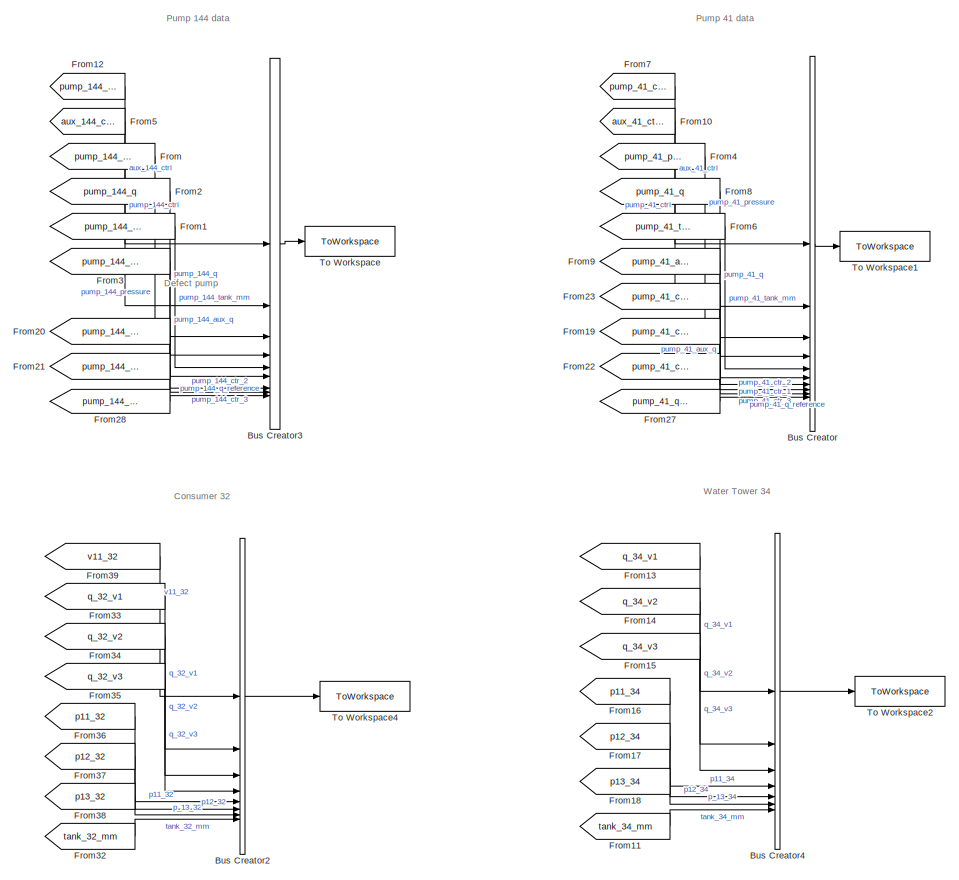
[diagram: Subsystem4 - part 1/2, left side, full height]
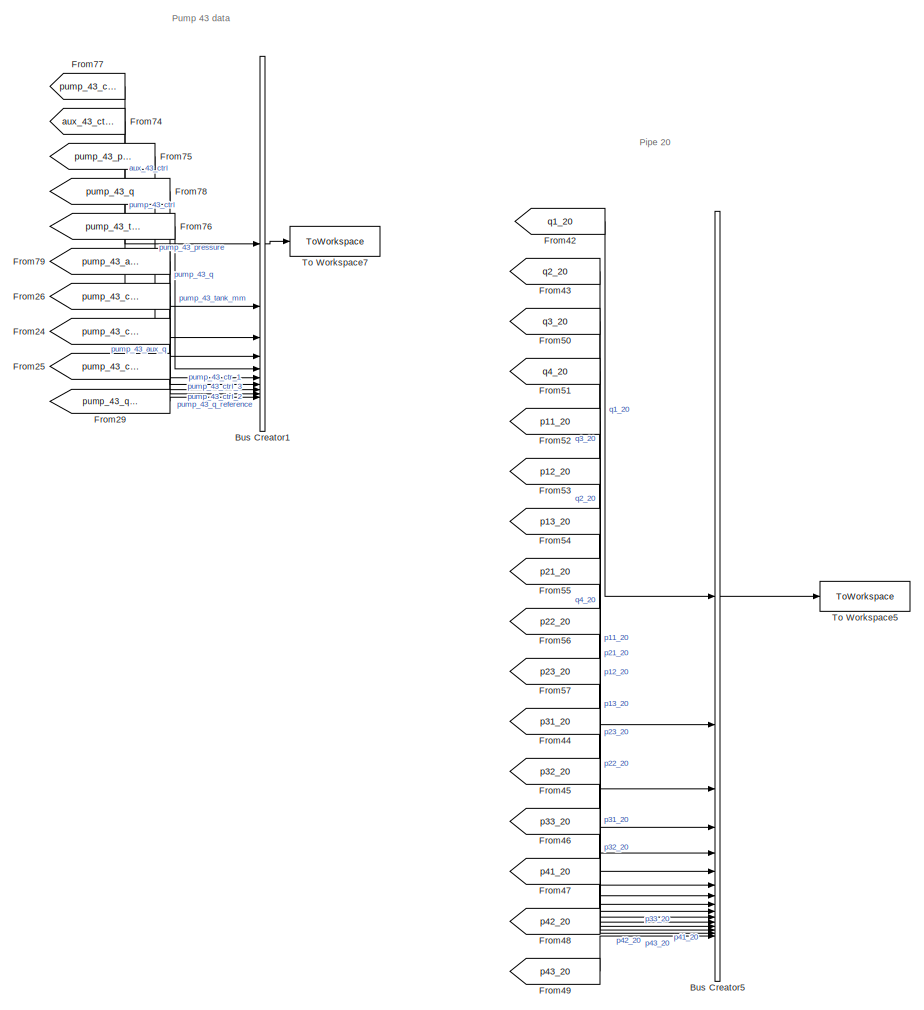
[diagram: Subsystem4 - part 2/2, right side, full height]
BLOCK [SubSystem] Subsystem4
BLOCK [BusCreator] Subsystem4/Bus Creator
  DisplayOption = bar
  InheritFromInputs = on
  Inputs = 10
BLOCK [BusCreator] Subsystem4/Bus Creator1
  DisplayOption = bar
  InheritFromInputs = on
  Inputs = 10
BLOCK [BusCreator] Subsystem4/Bus Creator2
  DisplayOption = bar
  InheritFromInputs = on
  Inputs = 8
BLOCK [BusCreator] Subsystem4/Bus Creator3
  DisplayOption = bar
  InheritFromInputs = on
  Inputs = 10
BLOCK [BusCreator] Subsystem4/Bus Creator4
  DisplayOption = bar
  InheritFromInputs = on
  Inputs = 7
BLOCK [BusCreator] Subsystem4/Bus Creator5
  DisplayOption = bar
  InheritFromInputs = on
  Inputs = 16
BLOCK [From] Subsystem4/From
  GotoTag = pump_144_pressure
  TagVisibility = global
BLOCK [From] Subsystem4/From1
  GotoTag = pump_144_tank_mm
  TagVisibility = global
BLOCK [From] Subsystem4/From10
  GotoTag = aux_41_ctrl
  NameLocation = top
BLOCK [From] Subsystem4/From11
  GotoTag = tank_34_mm
  TagVisibility = global
BLOCK [From] Subsystem4/From12
  GotoTag = pump_144_ctrl
  NameLocation = top
BLOCK [From] Subsystem4/From13
  GotoTag = q_34_v1
  TagVisibility = global
BLOCK [From] Subsystem4/From14
  GotoTag = q_34_v2
  TagVisibility = global
BLOCK [From] Subsystem4/From15
  GotoTag = q_34_v3
  TagVisibility = global
BLOCK [From] Subsystem4/From16
  GotoTag = p11_34
  TagVisibility = global
BLOCK [From] Subsystem4/From17
  GotoTag = p12_34
  TagVisibility = global
BLOCK [From] Subsystem4/From18
  GotoTag = p13_34
  TagVisibility = global
BLOCK [From] Subsystem4/From19
  GotoTag = pump_41_ctrl_2
  TagVisibility = global
BLOCK [From] Subsystem4/From2
  GotoTag = pump_144_q
  TagVisibility = global
BLOCK [From] Subsystem4/From20
  GotoTag = pump_144_ctrl_2
  TagVisibility = global
BLOCK [From] Subsystem4/From21
  GotoTag = pump_144_ctrl_3
  TagVisibility = global
BLOCK [From] Subsystem4/From22
  GotoTag = pump_41_ctrl_3
  TagVisibility = global
BLOCK [From] Subsystem4/From23
  GotoTag = pump_41_ctrl_1
  TagVisibility = global
BLOCK [From] Subsystem4/From24
  GotoTag = pump_43_ctrl_2
  TagVisibility = global
BLOCK [From] Subsystem4/From25
  GotoTag = pump_43_ctrl_3
  TagVisibility = global
BLOCK [From] Subsystem4/From26
  GotoTag = pump_43_ctrl_1
  TagVisibility = global
BLOCK [From] Subsystem4/From27
  GotoTag = pump_41_q_reference
  TagVisibility = global
BLOCK [From] Subsystem4/From28
  GotoTag = pump_144_q_reference
BLOCK [From] Subsystem4/From29
  GotoTag = pump_43_q_reference
  TagVisibility = global
BLOCK [From] Subsystem4/From3
  GotoTag = pump_144_aux_q
  TagVisibility = global
BLOCK [From] Subsystem4/From32
  GotoTag = tank_32_mm
  TagVisibility = global
BLOCK [From] Subsystem4/From33
  GotoTag = q_32_v1
  TagVisibility = global
BLOCK [From] Subsystem4/From34
  GotoTag = q_32_v2
  TagVisibility = global
BLOCK [From] Subsystem4/From35
  GotoTag = q_32_v3
  TagVisibility = global
BLOCK [From] Subsystem4/From36
  GotoTag = p11_32
  TagVisibility = global
BLOCK [From] Subsystem4/From37
  GotoTag = p12_32
  TagVisibility = global
BLOCK [From] Subsystem4/From38
  GotoTag = p13_32
  TagVisibility = global
BLOCK [From] Subsystem4/From39
  GotoTag = v11_32
BLOCK [From] Subsystem4/From4
  GotoTag = pump_41_pressure
  TagVisibility = global
BLOCK [From] Subsystem4/From42
  GotoTag = q1_20
  TagVisibility = global
BLOCK [From] Subsystem4/From43
  GotoTag = q2_20
  TagVisibility = global
BLOCK [From] Subsystem4/From44
  GotoTag = p31_20
  TagVisibility = global
BLOCK [From] Subsystem4/From45
  GotoTag = p32_20
  TagVisibility = global
BLOCK [From] Subsystem4/From46
  GotoTag = p33_20
  TagVisibility = global
BLOCK [From] Subsystem4/From47
  GotoTag = p41_20
  TagVisibility = global
BLOCK [From] Subsystem4/From48
  GotoTag = p42_20
  TagVisibility = global
BLOCK [From] Subsystem4/From49
  GotoTag = p43_20
  TagVisibility = global
BLOCK [From] Subsystem4/From5
  GotoTag = aux_144_ctrl
  NameLocation = top
BLOCK [From] Subsystem4/From50
  GotoTag = q3_20
  TagVisibility = global
BLOCK [From] Subsystem4/From51
  GotoTag = q4_20
  TagVisibility = global
BLOCK [From] Subsystem4/From52
  GotoTag = p11_20
  TagVisibility = global
BLOCK [From] Subsystem4/From53
  GotoTag = p12_20
  TagVisibility = global
BLOCK [From] Subsystem4/From54
  GotoTag = p13_20
  TagVisibility = global
BLOCK [From] Subsystem4/From55
  GotoTag = p21_20
  TagVisibility = global
BLOCK [From] Subsystem4/From56
  GotoTag = p22_20
  TagVisibility = global
BLOCK [From] Subsystem4/From57
  GotoTag = p23_20
  TagVisibility = global
BLOCK [From] Subsystem4/From6
  GotoTag = pump_41_tank_mm
  TagVisibility = global
BLOCK [From] Subsystem4/From7
  GotoTag = pump_41_ctrl
  NameLocation = top
BLOCK [From] Subsystem4/From74
  GotoTag = aux_43_ctrl
  NameLocation = top
BLOCK [From] Subsystem4/From75
  GotoTag = pump_43_pressure
  TagVisibility = global
BLOCK [From] Subsystem4/From76
  GotoTag = pump_43_tank_mm
  TagVisibility = global
BLOCK [From] Subsystem4/From77
  GotoTag = pump_43_ctrl
  NameLocation = top
BLOCK [From] Subsystem4/From78
  GotoTag = pump_43_q
  TagVisibility = global
BLOCK [From] Subsystem4/From79
  GotoTag = pump_43_aux_q
  TagVisibility = global
BLOCK [From] Subsystem4/From8
  GotoTag = pump_41_q
  TagVisibility = global
BLOCK [From] Subsystem4/From9
  GotoTag = pump_41_aux_q
  TagVisibility = global
BLOCK [ToWorkspace] Subsystem4/To Workspace
  FixptAsFi = on
  MaxDataPoints = inf
  SampleTime = 1
  Save2DSignal = 2-D array (concatenate along first dimension)
  SaveFormat = Timeseries
  VariableName = pump_144
BLOCK [ToWorkspace] Subsystem4/To Workspace1
  FixptAsFi = on
  MaxDataPoints = inf
  SampleTime = 1
  SaveFormat = Timeseries
  VariableName = pump_41
BLOCK [ToWorkspace] Subsystem4/To Workspace2
  FixptAsFi = on
  MaxDataPoints = inf
  SampleTime = 1
  SaveFormat = Timeseries
  VariableName = tower_34
BLOCK [ToWorkspace] Subsystem4/To Workspace4
  FixptAsFi = on
  MaxDataPoints = inf
  SampleTime = 1
  SaveFormat = Timeseries
  VariableName = consumer_32
BLOCK [ToWorkspace] Subsystem4/To Workspace5
  FixptAsFi = on
  MaxDataPoints = inf
  SampleTime = 1
  SaveFormat = Timeseries
  VariableName = pipe_20
BLOCK [ToWorkspace] Subsystem4/To Workspace7
  FixptAsFi = on
  MaxDataPoints = inf
  SampleTime = 1
  SaveFormat = Timeseries
  VariableName = pump_43
BLOCK [SubSystem] Subsystem6
BLOCK [Constant] Subsystem6/Constant
  Value = 0
BLOCK [Constant] Subsystem6/Constant1
  Value = 100
BLOCK [Constant] Subsystem6/Constant11
  Value = 0
BLOCK [Constant] Subsystem6/Constant2
  Value = 0
BLOCK [Constant] Subsystem6/Constant4
  Value = 0
BLOCK [Display] Subsystem6/Display
  Decimation = 1
BLOCK [SubSystem] Subsystem6/Elevated tank
BLOCK [Outport] Subsystem6/Elevated tank/C_1
  Port = 22
  VectorParamsAs1DForOutWhenUnconnected = off
BLOCK [Outport] Subsystem6/Elevated tank/C_2
  Port = 23
  VectorParamsAs1DForOutWhenUnconnected = off
BLOCK [Constant] Subsystem6/Elevated tank/Constant
  Value = zeros(14,1)
BLOCK [Demux] Subsystem6/Elevated tank/Demux
  Outputs = [7 1 8 5 3]
BLOCK [Demux] Subsystem6/Elevated tank/Demux1
  Outputs = 7
BLOCK [Demux] Subsystem6/Elevated tank/Demux2
  Outputs = 8
BLOCK [Demux] Subsystem6/Elevated tank/Demux3
  Outputs = 5
BLOCK [Demux] Subsystem6/Elevated tank/Demux4
  Outputs = 3
BLOCK [Reference] Subsystem6/Elevated tank/Modbus Read  REF=modbusMatLib/Modbus Read
  SourceBlock = modbusMatLib/Modbus Read
  SourceType = Modbus Read
BLOCK [Reference] Subsystem6/Elevated tank/Modbus Write  REF=modbusMatLib/Modbus Write
  SourceBlock = modbusMatLib/Modbus Write
  SourceType = Modbus Write
BLOCK [Mux] Subsystem6/Elevated tank/Mux
  DisplayOption = bar
  Inputs = 5
BLOCK [Mux] Subsystem6/Elevated tank/Mux1
  DisplayOption = bar
  Inputs = 2
BLOCK [Outport] Subsystem6/Elevated tank/P_11
  VectorParamsAs1DForOutWhenUnconnected = off
BLOCK [Outport] Subsystem6/Elevated tank/P_12
  Port = 2
  VectorParamsAs1DForOutWhenUnconnected = off
BLOCK [Outport] Subsystem6/Elevated tank/P_13
  Port = 3
  VectorParamsAs1DForOutWhenUnconnected = off
BLOCK [Outport] Subsystem6/Elevated tank/P_21
  Port = 4
  VectorParamsAs1DForOutWhenUnconnected = off
BLOCK [Outport] Subsystem6/Elevated tank/P_22
  Port = 5
  VectorParamsAs1DForOutWhenUnconnected = off
BLOCK [Outport] Subsystem6/Elevated tank/P_23
  Port = 6
  VectorParamsAs1DForOutWhenUnconnected = off
BLOCK [Outport] Subsystem6/Elevated tank/P_24
  Port = 7
  VectorParamsAs1DForOutWhenUnconnected = off
BLOCK [Outport] Subsystem6/Elevated tank/Q1_11
  Port = 17
  VectorParamsAs1DForOutWhenUnconnected = off
BLOCK [Outport] Subsystem6/Elevated tank/Q1_12
  Port = 18
  VectorParamsAs1DForOutWhenUnconnected = off
BLOCK [Outport] Subsystem6/Elevated tank/Q1_13
  Port = 19
  VectorParamsAs1DForOutWhenUnconnected = off
BLOCK [Outport] Subsystem6/Elevated tank/Q1_21
  Port = 20
  VectorParamsAs1DForOutWhenUnconnected = off
BLOCK [Outport] Subsystem6/Elevated tank/Q1_22
  Port = 21
  VectorParamsAs1DForOutWhenUnconnected = off
BLOCK [Outport] Subsystem6/Elevated tank/T_21
  Port = 9
  VectorParamsAs1DForOutWhenUnconnected = off
BLOCK [Outport] Subsystem6/Elevated tank/T_22
  Port = 10
  VectorParamsAs1DForOutWhenUnconnected = off
BLOCK [Outport] Subsystem6/Elevated tank/T_23
  Port = 11
  VectorParamsAs1DForOutWhenUnconnected = off
BLOCK [Outport] Subsystem6/Elevated tank/T_24
  Port = 12
  VectorParamsAs1DForOutWhenUnconnected = off
BLOCK [Outport] Subsystem6/Elevated tank/T_25
  Port = 13
  VectorParamsAs1DForOutWhenUnconnected = off
BLOCK [Outport] Subsystem6/Elevated tank/T_26
  Port = 14
  VectorParamsAs1DForOutWhenUnconnected = off
BLOCK [Outport] Subsystem6/Elevated tank/T_27
  Port = 15
  VectorParamsAs1DForOutWhenUnconnected = off
BLOCK [Outport] Subsystem6/Elevated tank/T_28
  Port = 16
  VectorParamsAs1DForOutWhenUnconnected = off
BLOCK [Inport] Subsystem6/Elevated tank/V_11
BLOCK [Inport] Subsystem6/Elevated tank/V_12
  Port = 2
BLOCK [Inport] Subsystem6/Elevated tank/V_13
  Port = 3
BLOCK [Inport] Subsystem6/Elevated tank/V_21
  Port = 4
BLOCK [Inport] Subsystem6/Elevated tank/V_22
  Port = 5
BLOCK [Outport] Subsystem6/Elevated tank/dP_2
  Port = 8
  VectorParamsAs1DForOutWhenUnconnected = off
BLOCK [From] Subsystem6/From13
  TagVisibility = global
BLOCK [From] Subsystem6/From14
  TagVisibility = global
BLOCK [From] Subsystem6/From3
  TagVisibility = global
BLOCK [From] Subsystem6/From6
  GotoTag = v11_34
BLOCK [From] Subsystem6/From7
  GotoTag = v12_34
BLOCK [Gain] Subsystem6/Gain1
  Gain = 100
  NameLocation = top
BLOCK [Gain] Subsystem6/Gain13
  Gain = 0.0978
  NameLocation = top
BLOCK [Gain] Subsystem6/Gain14
  Gain = 0.0978
  NameLocation = top
BLOCK [Gain] Subsystem6/Gain15
  Gain = 0.0978
  NameLocation = top
BLOCK [Gain] Subsystem6/Gain4
  Gain = 0.06
  NameLocation = top
BLOCK [Gain] Subsystem6/Gain5
  Gain = 0.06
  NameLocation = top
BLOCK [Gain] Subsystem6/Gain6
  Gain = 0.06
  NameLocation = top
BLOCK [Goto] Subsystem6/Goto13
  GotoTag = p11_34
  TagVisibility = global
BLOCK [Goto] Subsystem6/Goto14
  GotoTag = p12_34
  TagVisibility = global
BLOCK [Goto] Subsystem6/Goto15
  GotoTag = p13_34
  TagVisibility = global
BLOCK [Goto] Subsystem6/Goto2
  GotoTag = tank_34_mm
  TagVisibility = global
BLOCK [Goto] Subsystem6/Goto7
  GotoTag = q_34_v1
  TagVisibility = global
BLOCK [Goto] Subsystem6/Goto8
  GotoTag = q_34_v2
  TagVisibility = global
BLOCK [Goto] Subsystem6/Goto9
  GotoTag = q_34_v3
  TagVisibility = global
BLOCK [SignalSpecification] Subsystem6/Signal Specification1
  Unit = mm
BLOCK [SignalSpecification] Subsystem6/Signal Specification13
  Unit = bar
BLOCK [SignalSpecification] Subsystem6/Signal Specification14
  Unit = bar
BLOCK [SignalSpecification] Subsystem6/Signal Specification15
  Unit = bar
BLOCK [SignalSpecification] Subsystem6/Signal Specification4
  Unit = m^3/hr
BLOCK [SignalSpecification] Subsystem6/Signal Specification5
  Unit = m^3/hr
BLOCK [SignalSpecification] Subsystem6/Signal Specification6
  Unit = m^3/hr
BLOCK [Switch] Subsystem6/Switch3
  Criteria = u2 ~= 0
  InputSameDT = off
  SaturateOnIntegerOverflow = off
BLOCK [Switch] Subsystem6/Switch4
  Criteria = u2 ~= 0
  InputSameDT = off
  SaturateOnIntegerOverflow = off
BLOCK [Switch] Subsystem6/Switch5
  Criteria = u2 ~= 0
  InputSameDT = off
  SaturateOnIntegerOverflow = off
BLOCK [Sum] Sum
  Commented = on
  IconShape = rectangular
  Inputs = |+++
BLOCK [TransportDelay] Transport Delay
  DelayTime = 2
ANNOTATION (root): Logging
ANNOTATION (root): Consumer Block 32
ANNOTATION (root): Consumer Blocks
ANNOTATION (root): Elevated Tank
ANNOTATION (root): Pipe Blocks
ANNOTATION (root): Pumping Station Blocks
ANNOTATION (root): ON
ANNOTATION (root): OFF
ANNOTATION (root): Controller For module 41 (Pump station 1)
ANNOTATION (root): Controller For module 43 (Pump station 2)
ANNOTATION (root): Scopes
ANNOTATION (root): Simulation Setup
ANNOTATION  /Piping -1: Free
ANNOTATION Subsystem: Pump station 144 / 3
ANNOTATION Subsystem: Pump station 41 / 1
ANNOTATION Subsystem: Pump station 43 / 2
ANNOTATION Subsystem: Faulty
ANNOTATION Subsystem: Normal
ANNOTATION Subsystem: Stop
ANNOTATION Subsystem/Pumping Station: Diff Pressure
ANNOTATION Subsystem/Pumping Station: Flow
ANNOTATION Subsystem/Pumping Station: Free
ANNOTATION Subsystem/Pumping Station: Level
ANNOTATION Subsystem/Pumping Station: Pressures
ANNOTATION Subsystem/Pumping Station: Pumps
ANNOTATION Subsystem/Pumping Station: Temp.
ANNOTATION Subsystem/Pumping Station: Valves
ANNOTATION Subsystem/Pumping Station1: Diff Pressure
ANNOTATION Subsystem/Pumping Station1: Flow
ANNOTATION Subsystem/Pumping Station1: Free
ANNOTATION Subsystem/Pumping Station1: Level
ANNOTATION Subsystem/Pumping Station1: Pressures
ANNOTATION Subsystem/Pumping Station1: Pumps
ANNOTATION Subsystem/Pumping Station1: Temp.
ANNOTATION Subsystem/Pumping Station1: Valves
ANNOTATION Subsystem/Pumping Station2: Diff Pressure
ANNOTATION Subsystem/Pumping Station2: Flow
ANNOTATION Subsystem/Pumping Station2: Free
ANNOTATION Subsystem/Pumping Station2: Level
ANNOTATION Subsystem/Pumping Station2: Pressures
ANNOTATION Subsystem/Pumping Station2: Pumps
ANNOTATION Subsystem/Pumping Station2: Temp.
ANNOTATION Subsystem/Pumping Station2: Valves
ANNOTATION Subsystem1: Variable load pattern can be given to simulate variable demand
ANNOTATION Subsystem1: Normal
ANNOTATION Subsystem1: Stop
ANNOTATION Subsystem1/Consumer Station: Conductivity
ANNOTATION Subsystem1/Consumer Station: Diff. Pressure
ANNOTATION Subsystem1/Consumer Station: FLow
ANNOTATION Subsystem1/Consumer Station: Free
ANNOTATION Subsystem1/Consumer Station: Pressure
ANNOTATION Subsystem1/Consumer Station: Temperature
ANNOTATION Subsystem1/Consumer Station: Valves
ANNOTATION Subsystem2: Normal
ANNOTATION Subsystem2: Stop
ANNOTATION Subsystem2/Consumer Station: Conductivity
ANNOTATION Subsystem2/Consumer Station: Diff. Pressure
ANNOTATION Subsystem2/Consumer Station: FLow
ANNOTATION Subsystem2/Consumer Station: Free
ANNOTATION Subsystem2/Consumer Station: Pressure
ANNOTATION Subsystem2/Consumer Station: Temperature
ANNOTATION Subsystem2/Consumer Station: Valves
ANNOTATION Subsystem3: Demand scopes
ANNOTATION Subsystem3: Pumping scopes
ANNOTATION Subsystem3: Reservoir scopes
ANNOTATION Subsystem3: TO WORKSPACE
ANNOTATION Subsystem4: Water Tower 34
ANNOTATION Subsystem4: Consumer 32
ANNOTATION Subsystem4: Defect pump
ANNOTATION Subsystem4: Pipe 20
ANNOTATION Subsystem4: Pump 144 data
ANNOTATION Subsystem4: Pump 41 data
ANNOTATION Subsystem4: Pump 43 data
ANNOTATION Subsystem6: Normal
ANNOTATION Subsystem6: Stop
ANNOTATION Subsystem6/Elevated tank: Conductivity
ANNOTATION Subsystem6/Elevated tank: Diff. Pressure
ANNOTATION Subsystem6/Elevated tank: FLow
ANNOTATION Subsystem6/Elevated tank: Free
ANNOTATION Subsystem6/Elevated tank: Pressure
ANNOTATION Subsystem6/Elevated tank: Temperature
ANNOTATION Subsystem6/Elevated tank: Valves
LINE  /Gain10:1 ->  /Signal Specification10:1
LINE  /Gain11:1 ->  /Signal Specification11:1
LINE  /Gain12:1 ->  /Signal Specification12:1
LINE  /Gain13:1 ->  /Signal Specification13:1
LINE  /Gain14:1 ->  /Signal Specification14:1
LINE  /Gain15:1 ->  /Signal Specification15:1
LINE  /Gain16:1 ->  /Signal Specification16:1
LINE  /Gain1:1 ->  /Signal Specification1:1
LINE  /Gain2:1 ->  /Signal Specification3:1
LINE  /Gain3:1 ->  /Signal Specification2:1
LINE  /Gain4:1 ->  /Signal Specification5:1
LINE  /Gain5:1 ->  /Signal Specification6:1
LINE  /Gain6:1 ->  /Signal Specification4:1
LINE  /Gain7:1 ->  /Signal Specification7:1
LINE  /Gain8:1 ->  /Signal Specification8:1
LINE  /Gain9:1 ->  /Signal Specification9:1
LINE  /Piping -1/Constant:1 ->  /Piping -1/Modbus Write:1
LINE  /Piping -1/Demux1:1 ->  /Piping -1/Q3_1:1
LINE  /Piping -1/Demux1:2 ->  /Piping -1/Q3_2:1
LINE  /Piping -1/Demux1:3 ->  /Piping -1/Q3_3:1
LINE  /Piping -1/Demux1:4 ->  /Piping -1/Q3_4:1
LINE  /Piping -1/Demux2:1 ->  /Piping -1/P_11:1
LINE  /Piping -1/Demux2:10 ->  /Piping -1/P_41:1
LINE  /Piping -1/Demux2:11 ->  /Piping -1/P_42:1
LINE  /Piping -1/Demux2:12 ->  /Piping -1/P_43:1
LINE  /Piping -1/Demux2:2 ->  /Piping -1/P_12:1
LINE  /Piping -1/Demux2:3 ->  /Piping -1/P_13:1
LINE  /Piping -1/Demux2:4 ->  /Piping -1/P_21:1
LINE  /Piping -1/Demux2:5 ->  /Piping -1/P_22:1
LINE  /Piping -1/Demux2:6 ->  /Piping -1/P_23:1
LINE  /Piping -1/Demux2:7 ->  /Piping -1/P_31:1
LINE  /Piping -1/Demux2:8 ->  /Piping -1/P_32:1
LINE  /Piping -1/Demux2:9 ->  /Piping -1/P_33:1
LINE  /Piping -1/Demux:1 ->  /Piping -1/Demux1:1
LINE  /Piping -1/Demux:2 ->  /Piping -1/Demux2:1
LINE  /Piping -1/Demux:3 ->  /Piping -1/Demux3:1
LINE  /Piping -1/Modbus Read:1 ->  /Piping -1/Demux:1
LINE  /Piping -1:1 ->  /Gain2:1
LINE  /Piping -1:10 ->  /Gain6:1
LINE  /Piping -1:11 ->  /Gain10:1
LINE  /Piping -1:12 ->  /Gain9:1
LINE  /Piping -1:13 ->  /Gain11:1
LINE  /Piping -1:14 ->  /Gain12:1
LINE  /Piping -1:15 ->  /Gain13:1
LINE  /Piping -1:16 ->  /Gain14:1
LINE  /Piping -1:2 ->  /Gain4:1
LINE  /Piping -1:3 ->  /Gain5:1
LINE  /Piping -1:4 ->  /Gain16:1
LINE  /Piping -1:5 ->  /Gain15:1
LINE  /Piping -1:6 ->  /Gain7:1
LINE  /Piping -1:7 ->  /Gain3:1
LINE  /Piping -1:8 ->  /Gain1:1
LINE  /Piping -1:9 ->  /Gain8:1
LINE  /Signal Specification10:1 ->  /Goto12:1
LINE  /Signal Specification11:1 ->  /Goto13:1
LINE  /Signal Specification12:1 ->  /Goto15:1
LINE  /Signal Specification13:1 ->  /Goto11:1
LINE  /Signal Specification14:1 ->  /Goto16:1
LINE  /Signal Specification15:1 ->  /Goto5:1
LINE  /Signal Specification16:1 ->  /Goto3:1
LINE  /Signal Specification1:1 ->  /Goto8:1
LINE  /Signal Specification2:1 ->  /Goto6:1
LINE  /Signal Specification3:1 ->  /Goto2:1
LINE  /Signal Specification4:1 ->  /Goto9:1
LINE  /Signal Specification5:1 ->  /Goto1:1
LINE  /Signal Specification6:1 ->  /Goto4:1
LINE  /Signal Specification7:1 ->  /Goto7:1
LINE  /Signal Specification8:1 ->  /Goto10:1
LINE  /Signal Specification9:1 ->  /Goto14:1
NET Constant1:1 -> Goto8:1, Subsystem Reference3:2
NET Constant2:1 -> Goto12:1, Subsystem Reference4:2
LINE Constant4:1 -> Manual Switch:2
LINE Constant6:1 -> Manual Switch:1
LINE Constant:1 -> Subsystem Reference2:7
LINE From10:1 -> Subsystem Reference3:1
LINE From11:1 -> Subsystem Reference4:1
LINE From12:1 -> Scope1:2
LINE From15:1 -> Scope3:2
LINE From16:1 -> Scope3:1
LINE From17:1 -> Scope3:4
LINE From18:1 -> Scope3:3
LINE From1:1 -> Subsystem Reference:2
LINE From2:1 -> Subsystem Reference:3
LINE From3:1 -> Subsystem Reference:4
NET From4:1 -> Display:1, Subsystem Reference2:1
NET From5:1 -> Display1:1, Subsystem Reference2:2
NET From6:1 -> Display2:1, Subsystem Reference2:3
NET From7:1 -> Display3:1, Subsystem Reference2:4
NET From8:1 -> Display4:1, Subsystem Reference2:5
LINE From9:1 -> Scope1:1
LINE From:1 -> Subsystem Reference:1
NET Manual Switch:1 -> Goto:1, Transport Delay:1
LINE Subsystem Reference1:1 -> Display6:1
NET Subsystem Reference1:2 -> Display7:1, Goto16:1
NET Subsystem Reference1:3 -> Display8:1, Goto17:1
NET Subsystem Reference2:2 -> Display13:1, Sum:1
NET Subsystem Reference2:3 -> Display14:1, Sum:2
NET Subsystem Reference2:4 -> Display15:1, Sum:3
LINE Subsystem Reference2:8 -> Display5:1
LINE Subsystem Reference3:1 -> Goto5:1
LINE Subsystem Reference3:2 -> Goto6:1
LINE Subsystem Reference3:3 -> Goto7:1
LINE Subsystem Reference3:4 -> Goto13:1
LINE Subsystem Reference4:1 -> Goto9:1
LINE Subsystem Reference4:2 -> Goto10:1
LINE Subsystem Reference4:3 -> Goto11:1
LINE Subsystem Reference4:4 -> Goto14:1
NET Subsystem Reference:1 -> Display9:1, Goto1:1
NET Subsystem Reference:2 -> Display10:1, Goto2:1
NET Subsystem Reference:3 -> Display11:1, Goto3:1
LINE Subsystem/Constant10:1 -> Subsystem/Switch3:1
LINE Subsystem/Constant11:1 -> Subsystem/Switch4:1
LINE Subsystem/Constant12:1 -> Subsystem/Switch4:3
LINE Subsystem/Constant14:1 -> Subsystem/Switch8:1
LINE Subsystem/Constant15:1 -> Subsystem/Pumping Station2:10
LINE Subsystem/Constant16:1 -> Subsystem/Switch6:1
LINE Subsystem/Constant17:1 -> Subsystem/Switch6:3
NET Subsystem/Constant1:1 -> Subsystem/Manual Switch6:1, Subsystem/Manual Switch7:1
NET Subsystem/Constant20:1 -> Subsystem/Manual Switch2:1, Subsystem/Manual Switch3:1
NET Subsystem/Constant21:1 -> Subsystem/Manual Switch2:2, Subsystem/Manual Switch3:2
LINE Subsystem/Constant4:1 -> Subsystem/Switch9:1
LINE Subsystem/Constant5:1 -> Subsystem/Pumping Station:10
LINE Subsystem/Constant6:1 -> Subsystem/Pumping Station1:10
LINE Subsystem/Constant7:1 -> Subsystem/Switch1:1
LINE Subsystem/Constant8:1 -> Subsystem/Switch1:3
NET Subsystem/Constant9:1 -> Subsystem/Manual Switch6:2, Subsystem/Manual Switch7:2
LINE Subsystem/From10:1 -> Subsystem/Switch8:3
LINE Subsystem/From11:1 -> Subsystem/Subsystem Reference3:2
LINE Subsystem/From12:1 -> Subsystem/Subsystem Reference4:2
LINE Subsystem/From13:1 -> Subsystem/Subsystem Reference5:2
NET Subsystem/From14:1 -> Subsystem/Subsystem Reference3:1, Subsystem/Subsystem Reference4:1, Subsystem/Subsystem Reference5:1
LINE Subsystem/From1:1 -> Subsystem/Subsystem Reference:2
LINE Subsystem/From29:1 -> Subsystem/Switch6:2
LINE Subsystem/From2:1 -> Subsystem/Switch3:2
LINE Subsystem/From32:1 -> Subsystem/Switch8:2
LINE Subsystem/From3:1 -> Subsystem/Switch4:2
LINE Subsystem/From4:1 -> Subsystem/Subsystem Reference1:2
NET Subsystem/From5:1 -> Subsystem/Display:1, Subsystem/Switch3:3
LINE Subsystem/From6:1 -> Subsystem/Switch9:2
LINE Subsystem/From7:1 -> Subsystem/Subsystem Reference2:2
NET Subsystem/From8:1 -> Subsystem/Subsystem Reference1:1, Subsystem/Subsystem Reference2:1, Subsystem/Subsystem Reference:1
LINE Subsystem/From9:1 -> Subsystem/Switch9:3
LINE Subsystem/From:1 -> Subsystem/Switch1:2
LINE Subsystem/Gain10:1 -> Subsystem/Signal Specification10:1
LINE Subsystem/Gain11:1 -> Subsystem/Signal Specification11:1
LINE Subsystem/Gain12:1 -> Subsystem/Signal Specification12:1
LINE Subsystem/Gain1:1 -> Subsystem/Signal Specification1:1
LINE Subsystem/Gain2:1 -> Subsystem/Signal Specification3:1
LINE Subsystem/Gain3:1 -> Subsystem/Signal Specification4:1
LINE Subsystem/Gain4:1 -> Subsystem/Signal Specification5:1
LINE Subsystem/Gain5:1 -> Subsystem/Signal Specification6:1
LINE Subsystem/Gain6:1 -> Subsystem/Signal Specification2:1
LINE Subsystem/Gain7:1 -> Subsystem/Signal Specification7:1
LINE Subsystem/Gain8:1 -> Subsystem/Signal Specification8:1
LINE Subsystem/Gain9:1 -> Subsystem/Signal Specification9:1
NET Subsystem/Manual Switch6:1 -> Subsystem/Goto:1, Subsystem/Pumping Station:6
NET Subsystem/Manual Switch7:1 -> Subsystem/Goto7:1, Subsystem/Pumping Station:7
LINE Subsystem/Pumping Station/Constant:1 -> Subsystem/Pumping Station/Mux:4
LINE Subsystem/Pumping Station/Data:1 -> Subsystem/Pumping Station/Mux:3
LINE Subsystem/Pumping Station/Demux1:1 -> Subsystem/Pumping Station/P31:1
LINE Subsystem/Pumping Station/Demux1:2 -> Subsystem/Pumping Station/P32:1
LINE Subsystem/Pumping Station/Demux1:3 -> Subsystem/Pumping Station/P33:1
LINE Subsystem/Pumping Station/Demux1:4 -> Subsystem/Pumping Station/P51:1
LINE Subsystem/Pumping Station/Demux2:1 -> Subsystem/Pumping Station/dP2_ex:1
LINE Subsystem/Pumping Station/Demux2:2 -> Subsystem/Pumping Station/dP2_in:1
LINE Subsystem/Pumping Station/Demux3:1 -> Subsystem/Pumping Station/T31:1
LINE Subsystem/Pumping Station/Demux3:2 -> Subsystem/Pumping Station/T32:1
LINE Subsystem/Pumping Station/Demux3:3 -> Subsystem/Pumping Station/T33:1
LINE Subsystem/Pumping Station/Demux3:4 -> Subsystem/Pumping Station/T51:1
LINE Subsystem/Pumping Station/Demux4:1 -> Subsystem/Pumping Station/Q2_11:1
LINE Subsystem/Pumping Station/Demux4:2 -> Subsystem/Pumping Station/Q2_12:1
LINE Subsystem/Pumping Station/Demux4:3 -> Subsystem/Pumping Station/Q2_51:1
LINE Subsystem/Pumping Station/Demux6:1 -> Subsystem/Pumping Station/L_11:1
LINE Subsystem/Pumping Station/Demux6:2 -> Subsystem/Pumping Station/L_12:1
LINE Subsystem/Pumping Station/Demux6:3 -> Subsystem/Pumping Station/L_21:1
LINE Subsystem/Pumping Station/Demux6:4 -> Subsystem/Pumping Station/L_22:1
LINE Subsystem/Pumping Station/Demux:1 -> Subsystem/Pumping Station/Demux1:1
LINE Subsystem/Pumping Station/Demux:2 -> Subsystem/Pumping Station/Demux2:1
LINE Subsystem/Pumping Station/Demux:3 -> Subsystem/Pumping Station/Demux3:1
LINE Subsystem/Pumping Station/Demux:4 -> Subsystem/Pumping Station/Demux4:1
LINE Subsystem/Pumping Station/Demux:5 -> Subsystem/Pumping Station/C1:1
LINE Subsystem/Pumping Station/Demux:6 -> Subsystem/Pumping Station/Demux6:1
LINE Subsystem/Pumping Station/Modbus Read:1 -> Subsystem/Pumping Station/Demux:1
LINE Subsystem/Pumping Station/Mux1:1 -> Subsystem/Pumping Station/Mux:1
LINE Subsystem/Pumping Station/Mux2:1 -> Subsystem/Pumping Station/Mux:2
LINE Subsystem/Pumping Station/Mux:1 -> Subsystem/Pumping Station/Modbus Write:1
LINE Subsystem/Pumping Station/Pu_1:1 -> Subsystem/Pumping Station/Mux2:1
LINE Subsystem/Pumping Station/Pu_2:1 -> Subsystem/Pumping Station/Mux2:2
LINE Subsystem/Pumping Station/Pu_3:1 -> Subsystem/Pumping Station/Mux2:3
LINE Subsystem/Pumping Station/Pu_4:1 -> Subsystem/Pumping Station/Mux2:4
LINE Subsystem/Pumping Station/Pu_5:1 -> Subsystem/Pumping Station/Mux2:5
LINE Subsystem/Pumping Station/Pu_6:1 -> Subsystem/Pumping Station/Mux2:6
LINE Subsystem/Pumping Station/V_31:1 -> Subsystem/Pumping Station/Mux1:1
LINE Subsystem/Pumping Station/V_51:1 -> Subsystem/Pumping Station/Mux1:2
LINE Subsystem/Pumping Station/V_61:1 -> Subsystem/Pumping Station/Mux1:3
LINE Subsystem/Pumping Station/V_71:1 -> Subsystem/Pumping Station/Mux1:4
LINE Subsystem/Pumping Station1/Constant:1 -> Subsystem/Pumping Station1/Mux:4
LINE Subsystem/Pumping Station1/Data:1 -> Subsystem/Pumping Station1/Mux:3
LINE Subsystem/Pumping Station1/Demux1:1 -> Subsystem/Pumping Station1/P31:1
LINE Subsystem/Pumping Station1/Demux1:2 -> Subsystem/Pumping Station1/P32:1
LINE Subsystem/Pumping Station1/Demux1:3 -> Subsystem/Pumping Station1/P33:1
LINE Subsystem/Pumping Station1/Demux1:4 -> Subsystem/Pumping Station1/P51:1
LINE Subsystem/Pumping Station1/Demux2:1 -> Subsystem/Pumping Station1/dP2_ex:1
LINE Subsystem/Pumping Station1/Demux2:2 -> Subsystem/Pumping Station1/dP2_in:1
LINE Subsystem/Pumping Station1/Demux3:1 -> Subsystem/Pumping Station1/T31:1
LINE Subsystem/Pumping Station1/Demux3:2 -> Subsystem/Pumping Station1/T32:1
LINE Subsystem/Pumping Station1/Demux3:3 -> Subsystem/Pumping Station1/T33:1
LINE Subsystem/Pumping Station1/Demux3:4 -> Subsystem/Pumping Station1/T51:1
LINE Subsystem/Pumping Station1/Demux4:1 -> Subsystem/Pumping Station1/Q2_11:1
LINE Subsystem/Pumping Station1/Demux4:2 -> Subsystem/Pumping Station1/Q2_12:1
LINE Subsystem/Pumping Station1/Demux4:3 -> Subsystem/Pumping Station1/Q2_51:1
LINE Subsystem/Pumping Station1/Demux6:1 -> Subsystem/Pumping Station1/L_11:1
LINE Subsystem/Pumping Station1/Demux6:2 -> Subsystem/Pumping Station1/L_12:1
LINE Subsystem/Pumping Station1/Demux6:3 -> Subsystem/Pumping Station1/L_21:1
LINE Subsystem/Pumping Station1/Demux6:4 -> Subsystem/Pumping Station1/L_22:1
LINE Subsystem/Pumping Station1/Demux:1 -> Subsystem/Pumping Station1/Demux1:1
LINE Subsystem/Pumping Station1/Demux:2 -> Subsystem/Pumping Station1/Demux2:1
LINE Subsystem/Pumping Station1/Demux:3 -> Subsystem/Pumping Station1/Demux3:1
LINE Subsystem/Pumping Station1/Demux:4 -> Subsystem/Pumping Station1/Demux4:1
LINE Subsystem/Pumping Station1/Demux:5 -> Subsystem/Pumping Station1/C1:1
LINE Subsystem/Pumping Station1/Demux:6 -> Subsystem/Pumping Station1/Demux6:1
LINE Subsystem/Pumping Station1/Modbus Read:1 -> Subsystem/Pumping Station1/Demux:1
LINE Subsystem/Pumping Station1/Mux1:1 -> Subsystem/Pumping Station1/Mux:1
LINE Subsystem/Pumping Station1/Mux2:1 -> Subsystem/Pumping Station1/Mux:2
LINE Subsystem/Pumping Station1/Mux:1 -> Subsystem/Pumping Station1/Modbus Write:1
LINE Subsystem/Pumping Station1/Pu_1:1 -> Subsystem/Pumping Station1/Mux2:1
LINE Subsystem/Pumping Station1/Pu_2:1 -> Subsystem/Pumping Station1/Mux2:2
LINE Subsystem/Pumping Station1/Pu_3:1 -> Subsystem/Pumping Station1/Mux2:3
LINE Subsystem/Pumping Station1/Pu_4:1 -> Subsystem/Pumping Station1/Mux2:4
LINE Subsystem/Pumping Station1/Pu_5:1 -> Subsystem/Pumping Station1/Mux2:5
LINE Subsystem/Pumping Station1/Pu_6:1 -> Subsystem/Pumping Station1/Mux2:6
LINE Subsystem/Pumping Station1/V_31:1 -> Subsystem/Pumping Station1/Mux1:1
LINE Subsystem/Pumping Station1/V_51:1 -> Subsystem/Pumping Station1/Mux1:2
LINE Subsystem/Pumping Station1/V_61:1 -> Subsystem/Pumping Station1/Mux1:3
LINE Subsystem/Pumping Station1/V_71:1 -> Subsystem/Pumping Station1/Mux1:4
LINE Subsystem/Pumping Station1:12 -> Subsystem/Gain11:1
LINE Subsystem/Pumping Station1:13 -> Subsystem/Gain12:1
LINE Subsystem/Pumping Station1:3 -> Subsystem/Gain10:1
LINE Subsystem/Pumping Station1:5 -> Subsystem/Gain9:1
LINE Subsystem/Pumping Station2/Constant:1 -> Subsystem/Pumping Station2/Mux:4
LINE Subsystem/Pumping Station2/Data:1 -> Subsystem/Pumping Station2/Mux:3
LINE Subsystem/Pumping Station2/Demux1:1 -> Subsystem/Pumping Station2/P31:1
LINE Subsystem/Pumping Station2/Demux1:2 -> Subsystem/Pumping Station2/P32:1
LINE Subsystem/Pumping Station2/Demux1:3 -> Subsystem/Pumping Station2/P33:1
LINE Subsystem/Pumping Station2/Demux1:4 -> Subsystem/Pumping Station2/P51:1
LINE Subsystem/Pumping Station2/Demux2:1 -> Subsystem/Pumping Station2/dP2_ex:1
LINE Subsystem/Pumping Station2/Demux2:2 -> Subsystem/Pumping Station2/dP2_in:1
LINE Subsystem/Pumping Station2/Demux3:1 -> Subsystem/Pumping Station2/T31:1
LINE Subsystem/Pumping Station2/Demux3:2 -> Subsystem/Pumping Station2/T32:1
LINE Subsystem/Pumping Station2/Demux3:3 -> Subsystem/Pumping Station2/T33:1
LINE Subsystem/Pumping Station2/Demux3:4 -> Subsystem/Pumping Station2/T51:1
LINE Subsystem/Pumping Station2/Demux4:1 -> Subsystem/Pumping Station2/Q2_11:1
LINE Subsystem/Pumping Station2/Demux4:2 -> Subsystem/Pumping Station2/Q2_12:1
LINE Subsystem/Pumping Station2/Demux4:3 -> Subsystem/Pumping Station2/Q2_51:1
LINE Subsystem/Pumping Station2/Demux6:1 -> Subsystem/Pumping Station2/L_11:1
LINE Subsystem/Pumping Station2/Demux6:2 -> Subsystem/Pumping Station2/L_12:1
LINE Subsystem/Pumping Station2/Demux6:3 -> Subsystem/Pumping Station2/L_21:1
LINE Subsystem/Pumping Station2/Demux6:4 -> Subsystem/Pumping Station2/L_22:1
LINE Subsystem/Pumping Station2/Demux:1 -> Subsystem/Pumping Station2/Demux1:1
LINE Subsystem/Pumping Station2/Demux:2 -> Subsystem/Pumping Station2/Demux2:1
LINE Subsystem/Pumping Station2/Demux:3 -> Subsystem/Pumping Station2/Demux3:1
LINE Subsystem/Pumping Station2/Demux:4 -> Subsystem/Pumping Station2/Demux4:1
LINE Subsystem/Pumping Station2/Demux:5 -> Subsystem/Pumping Station2/C1:1
LINE Subsystem/Pumping Station2/Demux:6 -> Subsystem/Pumping Station2/Demux6:1
LINE Subsystem/Pumping Station2/Modbus Read:1 -> Subsystem/Pumping Station2/Demux:1
LINE Subsystem/Pumping Station2/Mux1:1 -> Subsystem/Pumping Station2/Mux:1
LINE Subsystem/Pumping Station2/Mux2:1 -> Subsystem/Pumping Station2/Mux:2
LINE Subsystem/Pumping Station2/Mux:1 -> Subsystem/Pumping Station2/Modbus Write:1
LINE Subsystem/Pumping Station2/Pu_1:1 -> Subsystem/Pumping Station2/Mux2:1
LINE Subsystem/Pumping Station2/Pu_2:1 -> Subsystem/Pumping Station2/Mux2:2
LINE Subsystem/Pumping Station2/Pu_3:1 -> Subsystem/Pumping Station2/Mux2:3
LINE Subsystem/Pumping Station2/Pu_4:1 -> Subsystem/Pumping Station2/Mux2:4
LINE Subsystem/Pumping Station2/Pu_5:1 -> Subsystem/Pumping Station2/Mux2:5
LINE Subsystem/Pumping Station2/Pu_6:1 -> Subsystem/Pumping Station2/Mux2:6
LINE Subsystem/Pumping Station2/V_31:1 -> Subsystem/Pumping Station2/Mux1:1
LINE Subsystem/Pumping Station2/V_51:1 -> Subsystem/Pumping Station2/Mux1:2
LINE Subsystem/Pumping Station2/V_61:1 -> Subsystem/Pumping Station2/Mux1:3
LINE Subsystem/Pumping Station2/V_71:1 -> Subsystem/Pumping Station2/Mux1:4
LINE Subsystem/Pumping Station2:12 -> Subsystem/Gain7:1
LINE Subsystem/Pumping Station2:13 -> Subsystem/Gain8:1
LINE Subsystem/Pumping Station2:3 -> Subsystem/Gain5:1
LINE Subsystem/Pumping Station2:5 -> Subsystem/Gain4:1
LINE Subsystem/Pumping Station:12 -> Subsystem/Gain1:1
LINE Subsystem/Pumping Station:13 -> Subsystem/Gain6:1
LINE Subsystem/Pumping Station:3 -> Subsystem/Gain3:1
LINE Subsystem/Pumping Station:5 -> Subsystem/Gain2:1
LINE Subsystem/Signal Specification10:1 -> Subsystem/Goto6:1
LINE Subsystem/Signal Specification11:1 -> Subsystem/Goto3:1
LINE Subsystem/Signal Specification12:1 -> Subsystem/Goto5:1
LINE Subsystem/Signal Specification1:1 -> Subsystem/Goto10:1
LINE Subsystem/Signal Specification2:1 -> Subsystem/Goto11:1
LINE Subsystem/Signal Specification3:1 -> Subsystem/Goto13:1
LINE Subsystem/Signal Specification4:1 -> Subsystem/Goto15:1
LINE Subsystem/Signal Specification5:1 -> Subsystem/Goto19:1
LINE Subsystem/Signal Specification6:1 -> Subsystem/Goto20:1
LINE Subsystem/Signal Specification7:1 -> Subsystem/Goto1:1
LINE Subsystem/Signal Specification8:1 -> Subsystem/Goto2:1
LINE Subsystem/Signal Specification9:1 -> Subsystem/Goto4:1
LINE Subsystem/Subsystem Reference1:1 -> Subsystem/Pumping Station2:6
LINE Subsystem/Subsystem Reference2:1 -> Subsystem/Pumping Station2:7
LINE Subsystem/Subsystem Reference3:1 -> Subsystem/Pumping Station1:6
LINE Subsystem/Subsystem Reference4:1 -> Subsystem/Pumping Station1:7
LINE Subsystem/Subsystem Reference:1 -> Subsystem/Pumping Station2:5
NET Subsystem/Switch1:1 -> Subsystem/Pumping Station:1, Subsystem/Pumping Station:2, Subsystem/Pumping Station:3, Subsystem/Pumping Station:4
NET Subsystem/Switch3:1 -> Subsystem/Pumping Station:8, Subsystem/Pumping Station:9
NET Subsystem/Switch4:1 -> Subsystem/Pumping Station1:1, Subsystem/Pumping Station1:2, Subsystem/Pumping Station1:3, Subsystem/Pumping Station1:4
NET Subsystem/Switch6:1 -> Subsystem/Pumping Station2:1, Subsystem/Pumping Station2:2, Subsystem/Pumping Station2:3, Subsystem/Pumping Station2:4
NET Subsystem/Switch8:1 -> Subsystem/Pumping Station2:8, Subsystem/Pumping Station2:9
NET Subsystem/Switch9:1 -> Subsystem/Pumping Station1:8, Subsystem/Pumping Station1:9
LINE Subsystem1/Constant11:1 -> Subsystem1/Switch4:1
LINE Subsystem1/Constant2:1 -> Subsystem1/Switch3:1
LINE Subsystem1/Constant4:1 -> Subsystem1/Switch5:1
NET Subsystem1/Constant:1 -> Subsystem1/Consumer Station:4, Subsystem1/Consumer Station:5
LINE Subsystem1/Consumer Station/Constant:1 -> Subsystem1/Consumer Station/Mux1:2
LINE Subsystem1/Consumer Station/Demux1:1 -> Subsystem1/Consumer Station/P_11:1
LINE Subsystem1/Consumer Station/Demux1:2 -> Subsystem1/Consumer Station/P_12:1
LINE Subsystem1/Consumer Station/Demux1:3 -> Subsystem1/Consumer Station/P_13:1
LINE Subsystem1/Consumer Station/Demux1:4 -> Subsystem1/Consumer Station/P_21:1
LINE Subsystem1/Consumer Station/Demux1:5 -> Subsystem1/Consumer Station/P_22:1
LINE Subsystem1/Consumer Station/Demux1:6 -> Subsystem1/Consumer Station/P_23:1
LINE Subsystem1/Consumer Station/Demux1:7 -> Subsystem1/Consumer Station/P_24:1
LINE Subsystem1/Consumer Station/Demux2:1 -> Subsystem1/Consumer Station/T_21:1
LINE Subsystem1/Consumer Station/Demux2:2 -> Subsystem1/Consumer Station/T_22:1
LINE Subsystem1/Consumer Station/Demux2:3 -> Subsystem1/Consumer Station/T_23:1
LINE Subsystem1/Consumer Station/Demux2:4 -> Subsystem1/Consumer Station/T_24:1
LINE Subsystem1/Consumer Station/Demux2:5 -> Subsystem1/Consumer Station/T_25:1
LINE Subsystem1/Consumer Station/Demux2:6 -> Subsystem1/Consumer Station/T_26:1
LINE Subsystem1/Consumer Station/Demux2:7 -> Subsystem1/Consumer Station/T_27:1
LINE Subsystem1/Consumer Station/Demux2:8 -> Subsystem1/Consumer Station/T_28:1
LINE Subsystem1/Consumer Station/Demux3:1 -> Subsystem1/Consumer Station/Q1_11:1
LINE Subsystem1/Consumer Station/Demux3:2 -> Subsystem1/Consumer Station/Q1_12:1
LINE Subsystem1/Consumer Station/Demux3:3 -> Subsystem1/Consumer Station/Q1_13:1
LINE Subsystem1/Consumer Station/Demux3:4 -> Subsystem1/Consumer Station/Q1_21:1
LINE Subsystem1/Consumer Station/Demux3:5 -> Subsystem1/Consumer Station/Q1_22:1
LINE Subsystem1/Consumer Station/Demux4:1 -> Subsystem1/Consumer Station/C_1:1
LINE Subsystem1/Consumer Station/Demux4:2 -> Subsystem1/Consumer Station/C_2:1
LINE Subsystem1/Consumer Station/Demux:1 -> Subsystem1/Consumer Station/Demux1:1
LINE Subsystem1/Consumer Station/Demux:2 -> Subsystem1/Consumer Station/dP_2:1
LINE Subsystem1/Consumer Station/Demux:3 -> Subsystem1/Consumer Station/Demux2:1
LINE Subsystem1/Consumer Station/Demux:4 -> Subsystem1/Consumer Station/Demux3:1
LINE Subsystem1/Consumer Station/Demux:5 -> Subsystem1/Consumer Station/Demux4:1
LINE Subsystem1/Consumer Station/Modbus Read:1 -> Subsystem1/Consumer Station/Demux:1
LINE Subsystem1/Consumer Station/Mux1:1 -> Subsystem1/Consumer Station/Modbus Write:1
LINE Subsystem1/Consumer Station/Mux:1 -> Subsystem1/Consumer Station/Mux1:1
LINE Subsystem1/Consumer Station/V_11:1 -> Subsystem1/Consumer Station/Mux:1
LINE Subsystem1/Consumer Station/V_12:1 -> Subsystem1/Consumer Station/Mux:2
LINE Subsystem1/Consumer Station/V_13:1 -> Subsystem1/Consumer Station/Mux:3
LINE Subsystem1/Consumer Station/V_21:1 -> Subsystem1/Consumer Station/Mux:4
LINE Subsystem1/Consumer Station/V_22:1 -> Subsystem1/Consumer Station/Mux:5
LINE Subsystem1/Consumer Station:1 -> Subsystem1/Gain13:1
LINE Subsystem1/Consumer Station:17 -> Subsystem1/Gain4:1
LINE Subsystem1/Consumer Station:18 -> Subsystem1/Gain5:1
LINE Subsystem1/Consumer Station:19 -> Subsystem1/Gain6:1
LINE Subsystem1/Consumer Station:2 -> Subsystem1/Gain14:1
LINE Subsystem1/Consumer Station:3 -> Subsystem1/Gain15:1
LINE Subsystem1/Consumer Station:8 -> Subsystem1/Gain1:1
LINE Subsystem1/From13:1 -> Subsystem1/Switch3:2
LINE Subsystem1/From14:1 -> Subsystem1/Switch5:2
LINE Subsystem1/From28:1 -> Subsystem1/Switch4:3
LINE Subsystem1/From3:1 -> Subsystem1/Switch4:2
LINE Subsystem1/From6:1 -> Subsystem1/Switch3:3
LINE Subsystem1/From7:1 -> Subsystem1/Switch5:3
LINE Subsystem1/Gain13:1 -> Subsystem1/Signal Specification13:1
LINE Subsystem1/Gain14:1 -> Subsystem1/Signal Specification14:1
LINE Subsystem1/Gain15:1 -> Subsystem1/Signal Specification15:1
LINE Subsystem1/Gain1:1 -> Subsystem1/Signal Specification1:1
LINE Subsystem1/Gain4:1 -> Subsystem1/Signal Specification4:1
LINE Subsystem1/Gain5:1 -> Subsystem1/Signal Specification5:1
LINE Subsystem1/Gain6:1 -> Subsystem1/Signal Specification6:1
LINE Subsystem1/Signal Specification13:1 -> Subsystem1/Goto13:1
LINE Subsystem1/Signal Specification14:1 -> Subsystem1/Goto14:1
LINE Subsystem1/Signal Specification15:1 -> Subsystem1/Goto15:1
LINE Subsystem1/Signal Specification1:1 -> Subsystem1/Goto2:1
LINE Subsystem1/Signal Specification4:1 -> Subsystem1/Goto7:1
LINE Subsystem1/Signal Specification5:1 -> Subsystem1/Goto8:1
LINE Subsystem1/Signal Specification6:1 -> Subsystem1/Goto9:1
LINE Subsystem1/Switch3:1 -> Subsystem1/Consumer Station:1
LINE Subsystem1/Switch4:1 -> Subsystem1/Consumer Station:3
LINE Subsystem1/Switch5:1 -> Subsystem1/Consumer Station:2
LINE Subsystem2/Constant11:1 -> Subsystem2/Switch4:1
LINE Subsystem2/Constant1:1 -> Subsystem2/Switch4:3
LINE Subsystem2/Constant2:1 -> Subsystem2/Switch3:1
LINE Subsystem2/Constant4:1 -> Subsystem2/Switch5:1
NET Subsystem2/Constant:1 -> Subsystem2/Consumer Station:4, Subsystem2/Consumer Station:5
LINE Subsystem2/Consumer Station/Constant:1 -> Subsystem2/Consumer Station/Mux1:2
LINE Subsystem2/Consumer Station/Demux1:1 -> Subsystem2/Consumer Station/P_11:1
LINE Subsystem2/Consumer Station/Demux1:2 -> Subsystem2/Consumer Station/P_12:1
LINE Subsystem2/Consumer Station/Demux1:3 -> Subsystem2/Consumer Station/P_13:1
LINE Subsystem2/Consumer Station/Demux1:4 -> Subsystem2/Consumer Station/P_21:1
LINE Subsystem2/Consumer Station/Demux1:5 -> Subsystem2/Consumer Station/P_22:1
LINE Subsystem2/Consumer Station/Demux1:6 -> Subsystem2/Consumer Station/P_23:1
LINE Subsystem2/Consumer Station/Demux1:7 -> Subsystem2/Consumer Station/P_24:1
LINE Subsystem2/Consumer Station/Demux2:1 -> Subsystem2/Consumer Station/T_21:1
LINE Subsystem2/Consumer Station/Demux2:2 -> Subsystem2/Consumer Station/T_22:1
LINE Subsystem2/Consumer Station/Demux2:3 -> Subsystem2/Consumer Station/T_23:1
LINE Subsystem2/Consumer Station/Demux2:4 -> Subsystem2/Consumer Station/T_24:1
LINE Subsystem2/Consumer Station/Demux2:5 -> Subsystem2/Consumer Station/T_25:1
LINE Subsystem2/Consumer Station/Demux2:6 -> Subsystem2/Consumer Station/T_26:1
LINE Subsystem2/Consumer Station/Demux2:7 -> Subsystem2/Consumer Station/T_27:1
LINE Subsystem2/Consumer Station/Demux2:8 -> Subsystem2/Consumer Station/T_28:1
LINE Subsystem2/Consumer Station/Demux3:1 -> Subsystem2/Consumer Station/Q1_11:1
LINE Subsystem2/Consumer Station/Demux3:2 -> Subsystem2/Consumer Station/Q1_12:1
LINE Subsystem2/Consumer Station/Demux3:3 -> Subsystem2/Consumer Station/Q1_13:1
LINE Subsystem2/Consumer Station/Demux3:4 -> Subsystem2/Consumer Station/Q1_21:1
LINE Subsystem2/Consumer Station/Demux3:5 -> Subsystem2/Consumer Station/Q1_22:1
LINE Subsystem2/Consumer Station/Demux4:1 -> Subsystem2/Consumer Station/C_1:1
LINE Subsystem2/Consumer Station/Demux4:2 -> Subsystem2/Consumer Station/C_2:1
LINE Subsystem2/Consumer Station/Demux:1 -> Subsystem2/Consumer Station/Demux1:1
LINE Subsystem2/Consumer Station/Demux:2 -> Subsystem2/Consumer Station/dP_2:1
LINE Subsystem2/Consumer Station/Demux:3 -> Subsystem2/Consumer Station/Demux2:1
LINE Subsystem2/Consumer Station/Demux:4 -> Subsystem2/Consumer Station/Demux3:1
LINE Subsystem2/Consumer Station/Demux:5 -> Subsystem2/Consumer Station/Demux4:1
LINE Subsystem2/Consumer Station/Modbus Read:1 -> Subsystem2/Consumer Station/Demux:1
LINE Subsystem2/Consumer Station/Mux1:1 -> Subsystem2/Consumer Station/Modbus Write:1
LINE Subsystem2/Consumer Station/Mux:1 -> Subsystem2/Consumer Station/Mux1:1
LINE Subsystem2/Consumer Station/V_11:1 -> Subsystem2/Consumer Station/Mux:1
LINE Subsystem2/Consumer Station/V_12:1 -> Subsystem2/Consumer Station/Mux:2
LINE Subsystem2/Consumer Station/V_13:1 -> Subsystem2/Consumer Station/Mux:3
LINE Subsystem2/Consumer Station/V_21:1 -> Subsystem2/Consumer Station/Mux:4
LINE Subsystem2/Consumer Station/V_22:1 -> Subsystem2/Consumer Station/Mux:5
LINE Subsystem2/Consumer Station:1 -> Subsystem2/Gain13:1
LINE Subsystem2/Consumer Station:17 -> Subsystem2/Gain4:1
LINE Subsystem2/Consumer Station:18 -> Subsystem2/Gain5:1
LINE Subsystem2/Consumer Station:19 -> Subsystem2/Gain6:1
LINE Subsystem2/Consumer Station:2 -> Subsystem2/Gain14:1
LINE Subsystem2/Consumer Station:3 -> Subsystem2/Gain15:1
LINE Subsystem2/Consumer Station:8 -> Subsystem2/Gain1:1
LINE Subsystem2/From13:1 -> Subsystem2/Switch3:2
LINE Subsystem2/From14:1 -> Subsystem2/Switch5:2
LINE Subsystem2/From3:1 -> Subsystem2/Switch4:2
NET Subsystem2/From7:1 -> Subsystem2/Switch3:3, Subsystem2/Switch5:3
LINE Subsystem2/Gain13:1 -> Subsystem2/Signal Specification13:1
LINE Subsystem2/Gain14:1 -> Subsystem2/Signal Specification14:1
LINE Subsystem2/Gain15:1 -> Subsystem2/Signal Specification15:1
LINE Subsystem2/Gain1:1 -> Subsystem2/Signal Specification1:1
LINE Subsystem2/Gain4:1 -> Subsystem2/Signal Specification4:1
LINE Subsystem2/Gain5:1 -> Subsystem2/Signal Specification5:1
LINE Subsystem2/Gain6:1 -> Subsystem2/Signal Specification6:1
NET Subsystem2/Signal Specification13:1 -> Subsystem2/Display:1, Subsystem2/Goto13:1
NET Subsystem2/Signal Specification14:1 -> Subsystem2/Display1:1, Subsystem2/Goto14:1
NET Subsystem2/Signal Specification15:1 -> Subsystem2/Display2:1, Subsystem2/Goto15:1
LINE Subsystem2/Signal Specification1:1 -> Subsystem2/Goto2:1
LINE Subsystem2/Signal Specification4:1 -> Subsystem2/Goto7:1
LINE Subsystem2/Signal Specification5:1 -> Subsystem2/Goto8:1
LINE Subsystem2/Signal Specification6:1 -> Subsystem2/Goto9:1
LINE Subsystem2/Switch3:1 -> Subsystem2/Consumer Station:1
LINE Subsystem2/Switch4:1 -> Subsystem2/Consumer Station:3
LINE Subsystem2/Switch5:1 -> Subsystem2/Consumer Station:2
LINE Subsystem3/From10:1 -> Subsystem3/Elevated reservoir:1
LINE Subsystem3/From11:1 -> Subsystem3/Elevated reservoir:2
LINE Subsystem3/From13:1 -> Subsystem3/Level of pump external tank:4
LINE Subsystem3/From15:1 -> Subsystem3/Mux1:1
LINE Subsystem3/From16:1 -> Subsystem3/Mux1:2
LINE Subsystem3/From17:1 -> Subsystem3/Consumer tank:2
LINE Subsystem3/From18:1 -> Subsystem3/Mux2:1
LINE Subsystem3/From19:1 -> Subsystem3/Flow of auxillary pump:1
LINE Subsystem3/From20:1 -> Subsystem3/Mux2:2
LINE Subsystem3/From22:1 -> Subsystem3/Level of pump external tank:1
LINE Subsystem3/From23:1 -> Subsystem3/Pipe flow:1
LINE Subsystem3/From24:1 -> Subsystem3/Level of pump external tank:2
LINE Subsystem3/From25:1 -> Subsystem3/To Workspace1:1
LINE Subsystem3/From26:1 -> Subsystem3/To Workspace:1
LINE Subsystem3/From6:1 -> Subsystem3/Flow of auxillary pump:2
LINE Subsystem3/From8:1 -> Subsystem3/Consumer tank:1
LINE Subsystem3/Mux1:1 -> Subsystem3/Consumer tank:3
LINE Subsystem3/Mux2:1 -> Subsystem3/Level of pump external tank:3
LINE Subsystem4/Bus Creator1:1 -> Subsystem4/To Workspace7:1
LINE Subsystem4/Bus Creator2:1 -> Subsystem4/To Workspace4:1
LINE Subsystem4/Bus Creator3:1 -> Subsystem4/To Workspace:1
LINE Subsystem4/Bus Creator4:1 -> Subsystem4/To Workspace2:1
LINE Subsystem4/Bus Creator5:1 -> Subsystem4/To Workspace5:1
LINE Subsystem4/Bus Creator:1 -> Subsystem4/To Workspace1:1
LINE Subsystem4/From10:1 -> Subsystem4/Bus Creator:2
LINE Subsystem4/From11:1 -> Subsystem4/Bus Creator4:7
LINE Subsystem4/From12:1 -> Subsystem4/Bus Creator3:1
LINE Subsystem4/From13:1 -> Subsystem4/Bus Creator4:1
LINE Subsystem4/From14:1 -> Subsystem4/Bus Creator4:2
LINE Subsystem4/From15:1 -> Subsystem4/Bus Creator4:3
LINE Subsystem4/From16:1 -> Subsystem4/Bus Creator4:4
LINE Subsystem4/From17:1 -> Subsystem4/Bus Creator4:5
LINE Subsystem4/From18:1 -> Subsystem4/Bus Creator4:6
LINE Subsystem4/From19:1 -> Subsystem4/Bus Creator:8
LINE Subsystem4/From1:1 -> Subsystem4/Bus Creator3:5
LINE Subsystem4/From20:1 -> Subsystem4/Bus Creator3:8
LINE Subsystem4/From21:1 -> Subsystem4/Bus Creator3:9
LINE Subsystem4/From22:1 -> Subsystem4/Bus Creator:9
LINE Subsystem4/From23:1 -> Subsystem4/Bus Creator:7
LINE Subsystem4/From24:1 -> Subsystem4/Bus Creator1:8
LINE Subsystem4/From25:1 -> Subsystem4/Bus Creator1:9
LINE Subsystem4/From26:1 -> Subsystem4/Bus Creator1:7
LINE Subsystem4/From27:1 -> Subsystem4/Bus Creator:10
LINE Subsystem4/From28:1 -> Subsystem4/Bus Creator3:10
LINE Subsystem4/From29:1 -> Subsystem4/Bus Creator1:10
LINE Subsystem4/From2:1 -> Subsystem4/Bus Creator3:4
LINE Subsystem4/From32:1 -> Subsystem4/Bus Creator2:8
LINE Subsystem4/From33:1 -> Subsystem4/Bus Creator2:2
LINE Subsystem4/From34:1 -> Subsystem4/Bus Creator2:3
LINE Subsystem4/From35:1 -> Subsystem4/Bus Creator2:4
LINE Subsystem4/From36:1 -> Subsystem4/Bus Creator2:5
LINE Subsystem4/From37:1 -> Subsystem4/Bus Creator2:6
LINE Subsystem4/From38:1 -> Subsystem4/Bus Creator2:7
LINE Subsystem4/From39:1 -> Subsystem4/Bus Creator2:1
LINE Subsystem4/From3:1 -> Subsystem4/Bus Creator3:6
LINE Subsystem4/From42:1 -> Subsystem4/Bus Creator5:1
LINE Subsystem4/From43:1 -> Subsystem4/Bus Creator5:2
LINE Subsystem4/From44:1 -> Subsystem4/Bus Creator5:11
LINE Subsystem4/From45:1 -> Subsystem4/Bus Creator5:12
LINE Subsystem4/From46:1 -> Subsystem4/Bus Creator5:13
LINE Subsystem4/From47:1 -> Subsystem4/Bus Creator5:14
LINE Subsystem4/From48:1 -> Subsystem4/Bus Creator5:15
LINE Subsystem4/From49:1 -> Subsystem4/Bus Creator5:16
LINE Subsystem4/From4:1 -> Subsystem4/Bus Creator:3
LINE Subsystem4/From50:1 -> Subsystem4/Bus Creator5:3
LINE Subsystem4/From51:1 -> Subsystem4/Bus Creator5:4
LINE Subsystem4/From52:1 -> Subsystem4/Bus Creator5:5
LINE Subsystem4/From53:1 -> Subsystem4/Bus Creator5:6
LINE Subsystem4/From54:1 -> Subsystem4/Bus Creator5:7
LINE Subsystem4/From55:1 -> Subsystem4/Bus Creator5:8
LINE Subsystem4/From56:1 -> Subsystem4/Bus Creator5:9
LINE Subsystem4/From57:1 -> Subsystem4/Bus Creator5:10
LINE Subsystem4/From5:1 -> Subsystem4/Bus Creator3:2
LINE Subsystem4/From6:1 -> Subsystem4/Bus Creator:5
LINE Subsystem4/From74:1 -> Subsystem4/Bus Creator1:2
LINE Subsystem4/From75:1 -> Subsystem4/Bus Creator1:3
LINE Subsystem4/From76:1 -> Subsystem4/Bus Creator1:5
LINE Subsystem4/From77:1 -> Subsystem4/Bus Creator1:1
LINE Subsystem4/From78:1 -> Subsystem4/Bus Creator1:4
LINE Subsystem4/From79:1 -> Subsystem4/Bus Creator1:6
LINE Subsystem4/From7:1 -> Subsystem4/Bus Creator:1
LINE Subsystem4/From8:1 -> Subsystem4/Bus Creator:4
LINE Subsystem4/From9:1 -> Subsystem4/Bus Creator:6
LINE Subsystem4/From:1 -> Subsystem4/Bus Creator3:3
LINE Subsystem6/Constant11:1 -> Subsystem6/Switch4:1
LINE Subsystem6/Constant1:1 -> Subsystem6/Switch4:3
LINE Subsystem6/Constant2:1 -> Subsystem6/Switch3:1
LINE Subsystem6/Constant4:1 -> Subsystem6/Switch5:1
NET Subsystem6/Constant:1 -> Subsystem6/Elevated tank:4, Subsystem6/Elevated tank:5
LINE Subsystem6/Elevated tank/Constant:1 -> Subsystem6/Elevated tank/Mux1:2
LINE Subsystem6/Elevated tank/Demux1:1 -> Subsystem6/Elevated tank/P_11:1
LINE Subsystem6/Elevated tank/Demux1:2 -> Subsystem6/Elevated tank/P_12:1
LINE Subsystem6/Elevated tank/Demux1:3 -> Subsystem6/Elevated tank/P_13:1
LINE Subsystem6/Elevated tank/Demux1:4 -> Subsystem6/Elevated tank/P_21:1
LINE Subsystem6/Elevated tank/Demux1:5 -> Subsystem6/Elevated tank/P_22:1
LINE Subsystem6/Elevated tank/Demux1:6 -> Subsystem6/Elevated tank/P_23:1
LINE Subsystem6/Elevated tank/Demux1:7 -> Subsystem6/Elevated tank/P_24:1
LINE Subsystem6/Elevated tank/Demux2:1 -> Subsystem6/Elevated tank/T_21:1
LINE Subsystem6/Elevated tank/Demux2:2 -> Subsystem6/Elevated tank/T_22:1
LINE Subsystem6/Elevated tank/Demux2:3 -> Subsystem6/Elevated tank/T_23:1
LINE Subsystem6/Elevated tank/Demux2:4 -> Subsystem6/Elevated tank/T_24:1
LINE Subsystem6/Elevated tank/Demux2:5 -> Subsystem6/Elevated tank/T_25:1
LINE Subsystem6/Elevated tank/Demux2:6 -> Subsystem6/Elevated tank/T_26:1
LINE Subsystem6/Elevated tank/Demux2:7 -> Subsystem6/Elevated tank/T_27:1
LINE Subsystem6/Elevated tank/Demux2:8 -> Subsystem6/Elevated tank/T_28:1
LINE Subsystem6/Elevated tank/Demux3:1 -> Subsystem6/Elevated tank/Q1_11:1
LINE Subsystem6/Elevated tank/Demux3:2 -> Subsystem6/Elevated tank/Q1_12:1
LINE Subsystem6/Elevated tank/Demux3:3 -> Subsystem6/Elevated tank/Q1_13:1
LINE Subsystem6/Elevated tank/Demux3:4 -> Subsystem6/Elevated tank/Q1_21:1
LINE Subsystem6/Elevated tank/Demux3:5 -> Subsystem6/Elevated tank/Q1_22:1
LINE Subsystem6/Elevated tank/Demux4:1 -> Subsystem6/Elevated tank/C_1:1
LINE Subsystem6/Elevated tank/Demux4:2 -> Subsystem6/Elevated tank/C_2:1
LINE Subsystem6/Elevated tank/Demux:1 -> Subsystem6/Elevated tank/Demux1:1
LINE Subsystem6/Elevated tank/Demux:2 -> Subsystem6/Elevated tank/dP_2:1
LINE Subsystem6/Elevated tank/Demux:3 -> Subsystem6/Elevated tank/Demux2:1
LINE Subsystem6/Elevated tank/Demux:4 -> Subsystem6/Elevated tank/Demux3:1
LINE Subsystem6/Elevated tank/Demux:5 -> Subsystem6/Elevated tank/Demux4:1
LINE Subsystem6/Elevated tank/Modbus Read:1 -> Subsystem6/Elevated tank/Demux:1
LINE Subsystem6/Elevated tank/Mux1:1 -> Subsystem6/Elevated tank/Modbus Write:1
LINE Subsystem6/Elevated tank/Mux:1 -> Subsystem6/Elevated tank/Mux1:1
LINE Subsystem6/Elevated tank/V_11:1 -> Subsystem6/Elevated tank/Mux:1
LINE Subsystem6/Elevated tank/V_12:1 -> Subsystem6/Elevated tank/Mux:2
LINE Subsystem6/Elevated tank/V_13:1 -> Subsystem6/Elevated tank/Mux:3
LINE Subsystem6/Elevated tank/V_21:1 -> Subsystem6/Elevated tank/Mux:4
LINE Subsystem6/Elevated tank/V_22:1 -> Subsystem6/Elevated tank/Mux:5
LINE Subsystem6/Elevated tank:1 -> Subsystem6/Gain13:1
LINE Subsystem6/Elevated tank:17 -> Subsystem6/Gain4:1
LINE Subsystem6/Elevated tank:18 -> Subsystem6/Gain5:1
LINE Subsystem6/Elevated tank:19 -> Subsystem6/Gain6:1
LINE Subsystem6/Elevated tank:2 -> Subsystem6/Gain14:1
LINE Subsystem6/Elevated tank:3 -> Subsystem6/Gain15:1
LINE Subsystem6/Elevated tank:8 -> Subsystem6/Gain1:1
LINE Subsystem6/From13:1 -> Subsystem6/Switch3:2
LINE Subsystem6/From14:1 -> Subsystem6/Switch5:2
LINE Subsystem6/From3:1 -> Subsystem6/Switch4:2
LINE Subsystem6/From6:1 -> Subsystem6/Switch3:3
LINE Subsystem6/From7:1 -> Subsystem6/Switch5:3
LINE Subsystem6/Gain13:1 -> Subsystem6/Signal Specification13:1
LINE Subsystem6/Gain14:1 -> Subsystem6/Signal Specification14:1
LINE Subsystem6/Gain15:1 -> Subsystem6/Signal Specification15:1
LINE Subsystem6/Gain1:1 -> Subsystem6/Signal Specification1:1
LINE Subsystem6/Gain4:1 -> Subsystem6/Signal Specification4:1
LINE Subsystem6/Gain5:1 -> Subsystem6/Signal Specification5:1
LINE Subsystem6/Gain6:1 -> Subsystem6/Signal Specification6:1
LINE Subsystem6/Signal Specification13:1 -> Subsystem6/Goto13:1
LINE Subsystem6/Signal Specification14:1 -> Subsystem6/Goto14:1
LINE Subsystem6/Signal Specification15:1 -> Subsystem6/Goto15:1
NET Subsystem6/Signal Specification1:1 -> Subsystem6/Display:1, Subsystem6/Goto2:1
LINE Subsystem6/Signal Specification4:1 -> Subsystem6/Goto7:1
LINE Subsystem6/Signal Specification5:1 -> Subsystem6/Goto8:1
LINE Subsystem6/Signal Specification6:1 -> Subsystem6/Goto9:1
LINE Subsystem6/Switch3:1 -> Subsystem6/Elevated tank:1
LINE Subsystem6/Switch4:1 -> Subsystem6/Elevated tank:3
LINE Subsystem6/Switch5:1 -> Subsystem6/Elevated tank:2
NET Sum:1 -> Display12:1, Subsystem Reference1:1
LINE Transport Delay:1 -> Stop Simulation1:1
note: NET lines group one-source signal fan-out (src -> all destinations, sorted); 1:1 wires keep LINE
